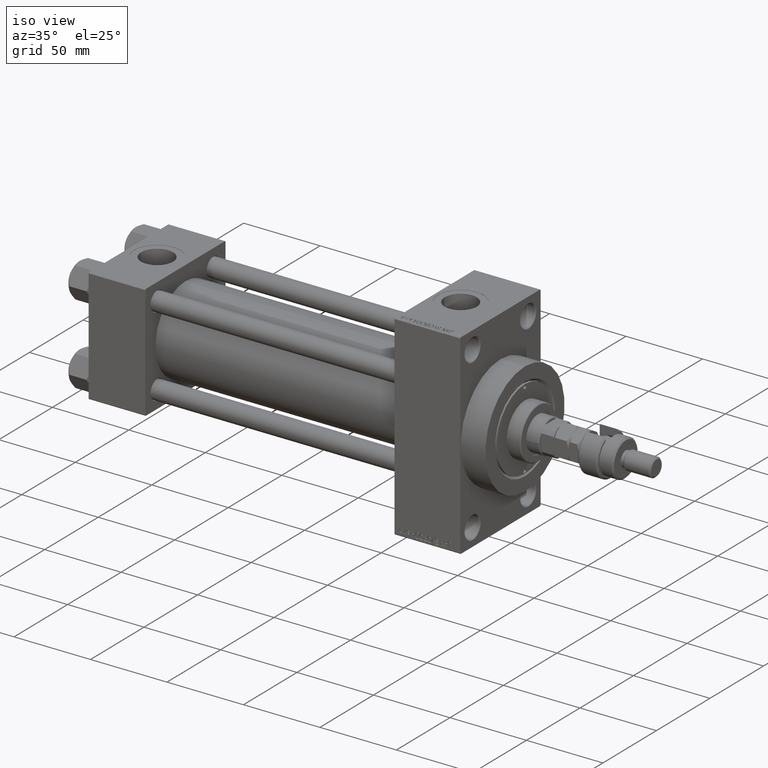
[diagram: clean part render]
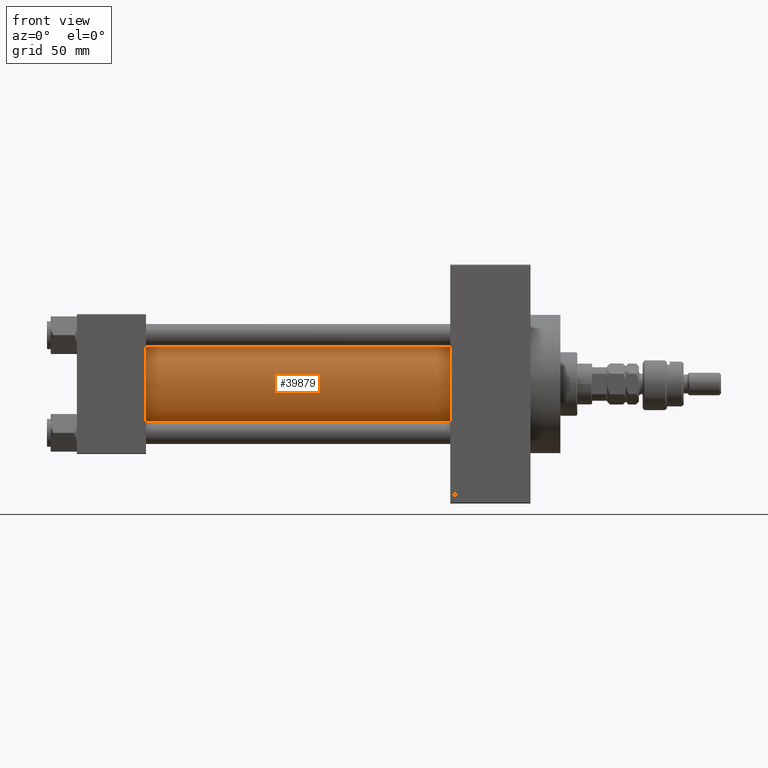
[diagram: tour spotlight — one face highlighted and labeled with its STEP entity id]
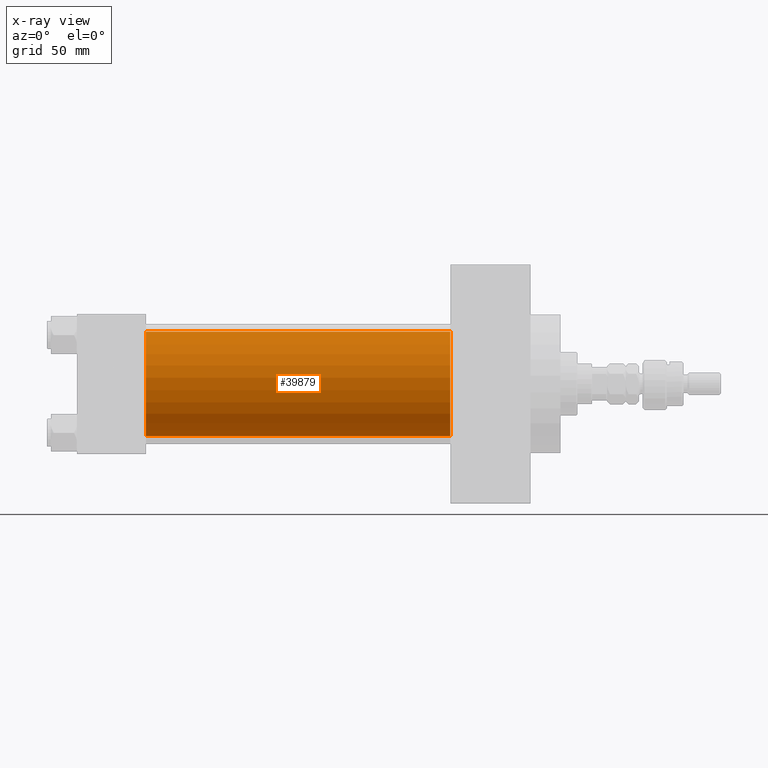
[diagram: x-ray of the same camera — body ghosted, this tour face saturated]
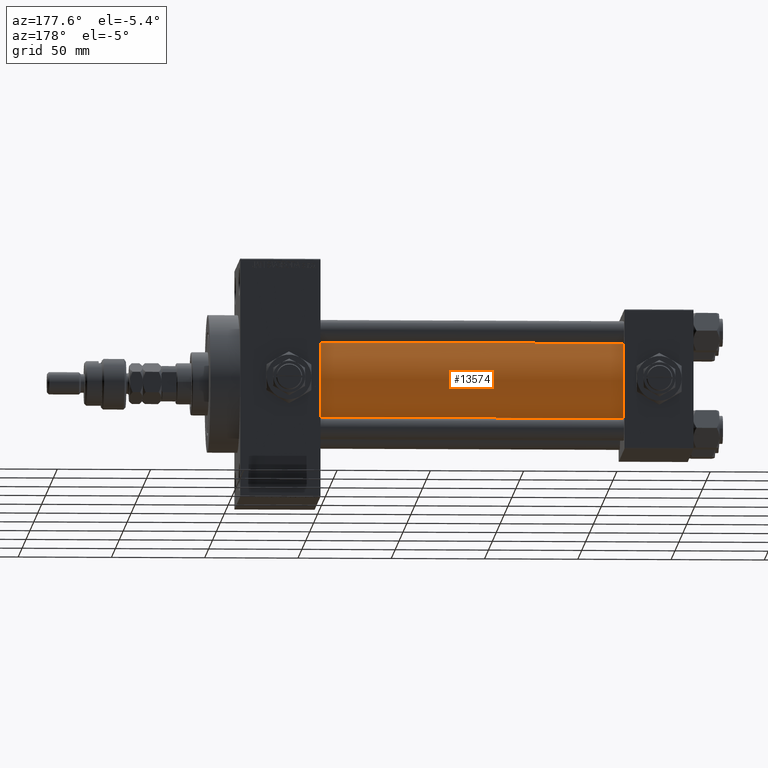
[diagram: tour spotlight — one face highlighted and labeled with its STEP entity id]
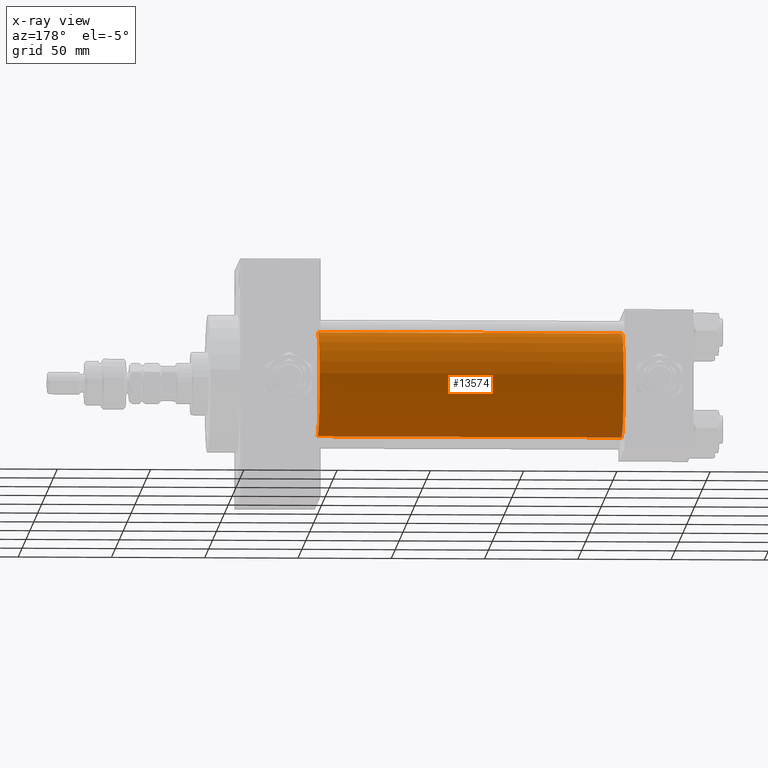
[diagram: x-ray of the same camera — body ghosted, this tour face saturated]
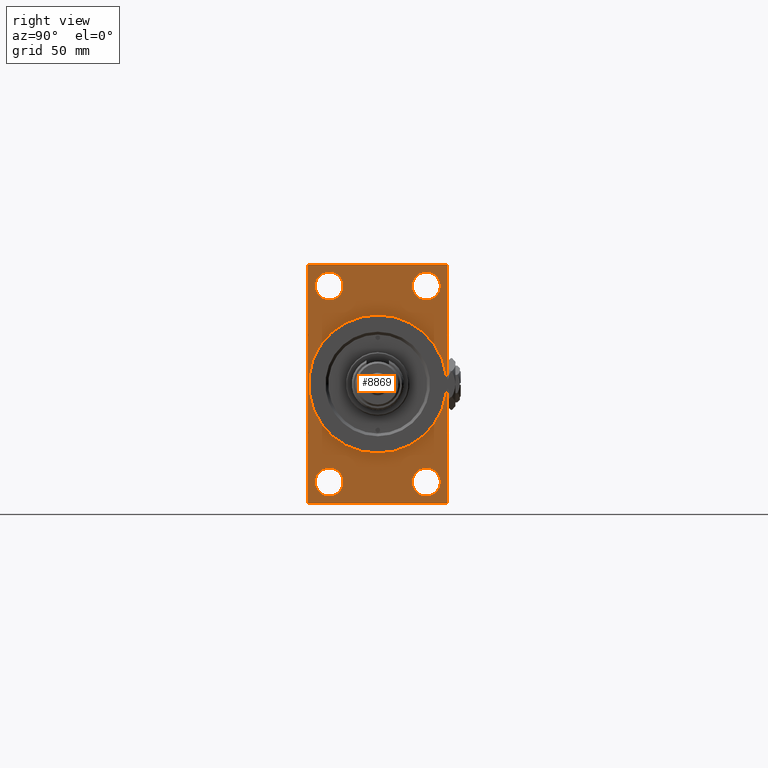
[diagram: tour spotlight — one face highlighted and labeled with its STEP entity id]
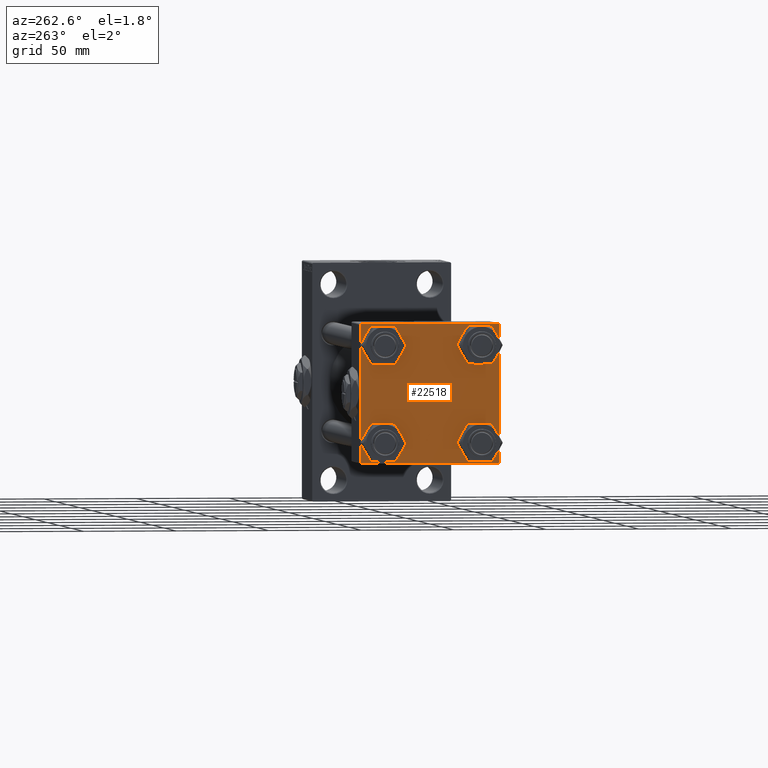
[diagram: tour spotlight — one face highlighted and labeled with its STEP entity id]
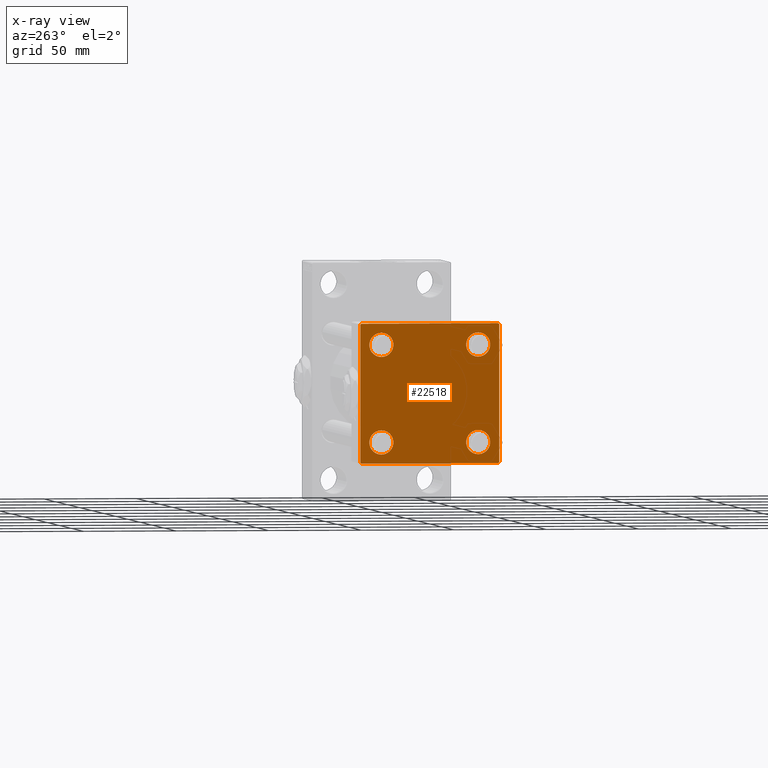
[diagram: x-ray of the same camera — body ghosted, this tour face saturated]
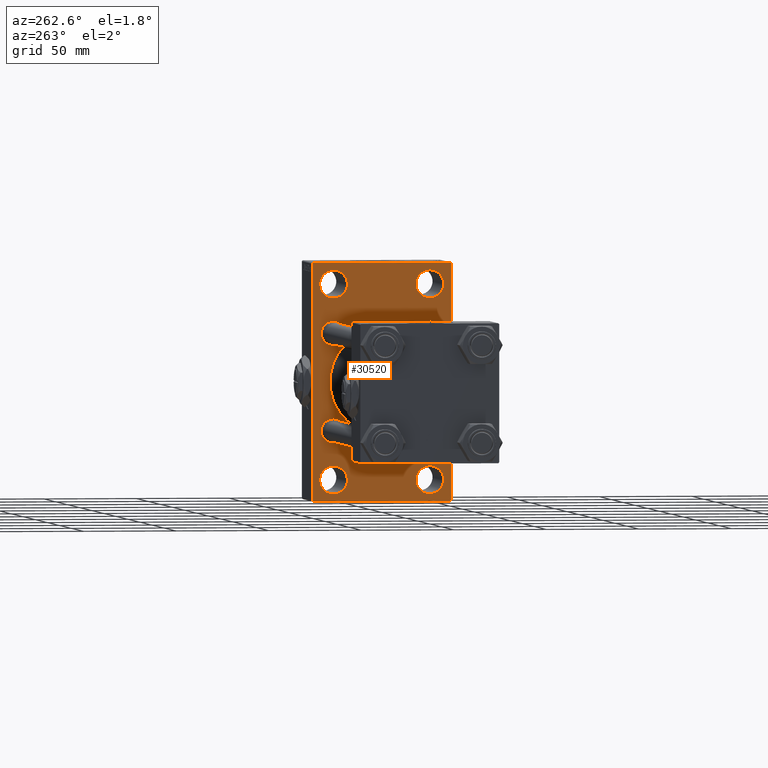
[diagram: tour spotlight — one face highlighted and labeled with its STEP entity id]
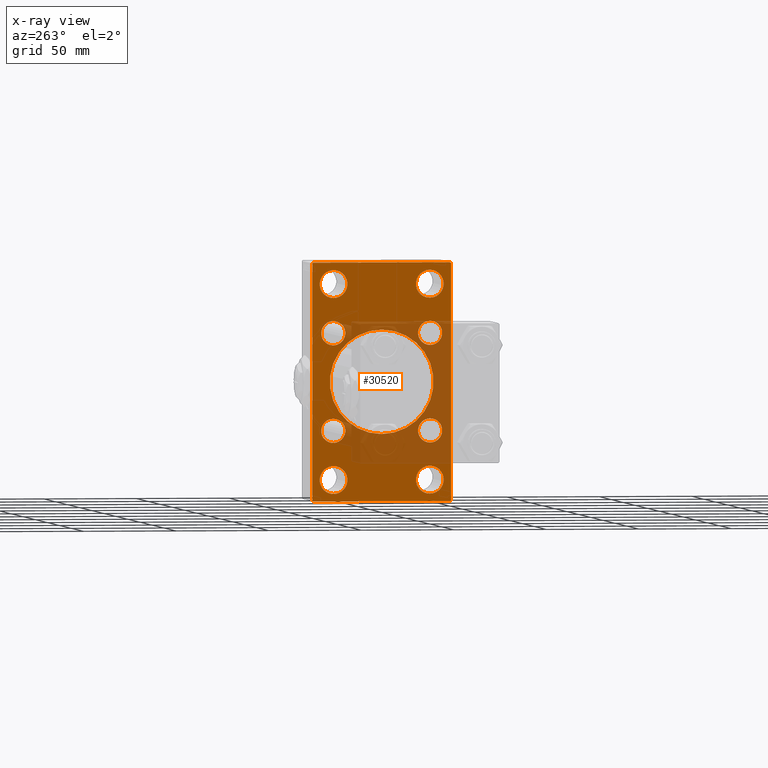
[diagram: x-ray of the same camera — body ghosted, this tour face saturated]
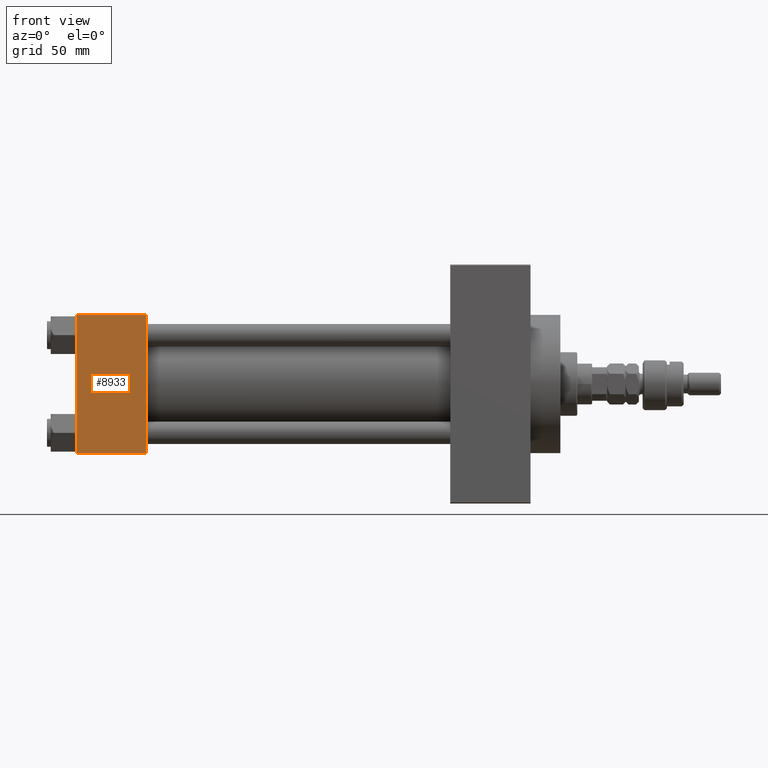
[diagram: tour spotlight — one face highlighted and labeled with its STEP entity id]
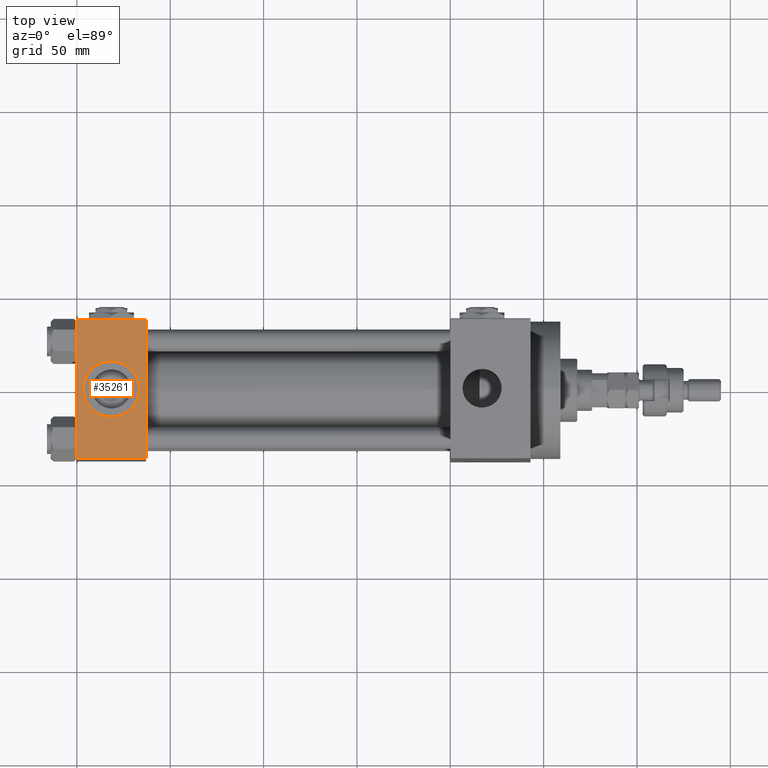
[diagram: tour spotlight — one face highlighted and labeled with its STEP entity id]
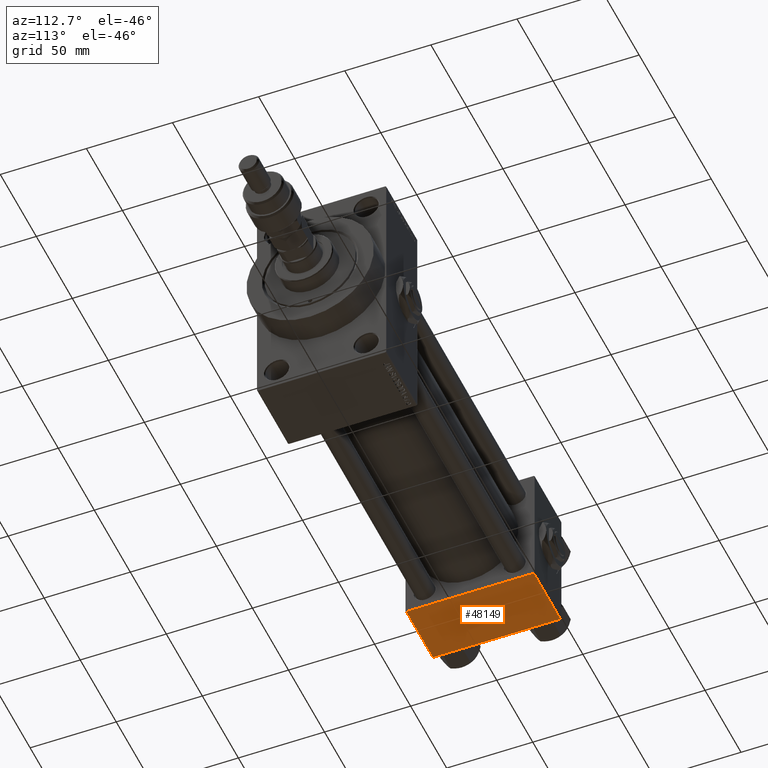
[diagram: tour spotlight — one face highlighted and labeled with its STEP entity id]
A machine part: a face-by-face anatomy tour. The part has 1297 B-rep faces; the first image is the clean iso view, then the 8 largest visible faces are spotlighted one at a time (largest first), each with its STEP entity span.

Face 1 — front view, entity #39879. An x-ray twin of the same camera follows (body ghosted, this face saturated) — the face is partly hidden behind the body. In plain terms, the highlighted cylindrical surface (partial cylindrical patch) has radius 28 mm, axis along (-1, -0, -0).
Definition (entity closure, byte-faithful):
#2116 = CARTESIAN_POINT ( 'NONE',  ( 200.0000000000000000, -2.602085213965210642E-15, 28.00000000000000000 ) ) ;
#2608 = CYLINDRICAL_SURFACE ( 'NONE', #25551, 28.00000000000000000 ) ;
#3634 = CIRCLE ( 'NONE', #44191, 28.00000000000000000 ) ;
#4067 = EDGE_LOOP ( 'NONE', ( #49019, #43283, #26954, #33730 ) ) ;
#4805 = VECTOR ( 'NONE', #11280, 1000.000000000000000 ) ;
#6915 = CARTESIAN_POINT ( 'NONE',  ( 37.00000000000000711, -2.602085213965210642E-15, 0.000000000000000000 ) ) ;
#8539 = EDGE_CURVE ( 'NONE', #33530, #34819, #14195, .T. ) ;
#9459 = DIRECTION ( 'NONE',  ( 0.000000000000000000, 0.000000000000000000, -1.000000000000000000 ) ) ;
#10891 = DIRECTION ( 'NONE',  ( 0.000000000000000000, 0.000000000000000000, 1.000000000000000000 ) ) ;
#11280 = DIRECTION ( 'NONE',  ( -1.000000000000000000, -0.000000000000000000, -0.000000000000000000 ) ) ;
#14195 = LINE ( 'NONE', #18934, #4805 ) ;
#17204 = DIRECTION ( 'NONE',  ( -1.000000000000000000, -0.000000000000000000, -0.000000000000000000 ) ) ;
#18934 = CARTESIAN_POINT ( 'NONE',  ( 200.0000000000000000, 8.269258236473784371E-16, -28.00000000000000000 ) ) ;
#20593 = VERTEX_POINT ( 'NONE', #40118 ) ;
#22193 = FACE_OUTER_BOUND ( 'NONE', #4067, .T. ) ;
#22257 = VERTEX_POINT ( 'NONE', #39976 ) ;
#25551 = AXIS2_PLACEMENT_3D ( 'NONE', #34890, #51026, #50507 ) ;
#26722 = AXIS2_PLACEMENT_3D ( 'NONE', #6915, #42896, #10891 ) ;
#26751 = CIRCLE ( 'NONE', #26722, 28.00000000000000000 ) ;
#26954 = ORIENTED_EDGE ( 'NONE', *, *, #46756, .T. ) ;
#28258 = CARTESIAN_POINT ( 'NONE',  ( 37.00000000000000711, 8.269258236473784371E-16, -28.00000000000000000 ) ) ;
#30566 = EDGE_CURVE ( 'NONE', #22257, #34819, #26751, .T. ) ;
#33530 = VERTEX_POINT ( 'NONE', #41588 ) ;
#33730 = ORIENTED_EDGE ( 'NONE', *, *, #30566, .T. ) ;
#34819 = VERTEX_POINT ( 'NONE', #28258 ) ;
#34890 = CARTESIAN_POINT ( 'NONE',  ( 200.0000000000000000, -2.602085213965210642E-15, 0.000000000000000000 ) ) ;
#37571 = LINE ( 'NONE', #2116, #40902 ) ;
#39879 = ADVANCED_FACE ( 'NONE', ( #22193 ), #2608, .T. ) ;
#39976 = CARTESIAN_POINT ( 'NONE',  ( 37.00000000000000711, -2.602085213965210642E-15, 28.00000000000000000 ) ) ;
#40118 = CARTESIAN_POINT ( 'NONE',  ( 200.0000000000000000, -2.602085213965210642E-15, 28.00000000000000000 ) ) ;
#40902 = VECTOR ( 'NONE', #17204, 1000.000000000000000 ) ;
#40935 = EDGE_CURVE ( 'NONE', #20593, #33530, #3634, .T. ) ;
#41588 = CARTESIAN_POINT ( 'NONE',  ( 200.0000000000000000, 8.269258236473784371E-16, -28.00000000000000000 ) ) ;
#41725 = DIRECTION ( 'NONE',  ( 1.000000000000000000, 0.000000000000000000, 0.000000000000000000 ) ) ;
#42896 = DIRECTION ( 'NONE',  ( 1.000000000000000000, -0.000000000000000000, 0.000000000000000000 ) ) ;
#43283 = ORIENTED_EDGE ( 'NONE', *, *, #40935, .F. ) ;
#44191 = AXIS2_PLACEMENT_3D ( 'NONE', #45181, #41725, #9459 ) ;
#45181 = CARTESIAN_POINT ( 'NONE',  ( 200.0000000000000000, -2.602085213965210642E-15, 0.000000000000000000 ) ) ;
#46756 = EDGE_CURVE ( 'NONE', #20593, #22257, #37571, .T. ) ;
#49019 = ORIENTED_EDGE ( 'NONE', *, *, #8539, .F. ) ;
#50507 = DIRECTION ( 'NONE',  ( 0.000000000000000000, 0.000000000000000000, 1.000000000000000000 ) ) ;
#51026 = DIRECTION ( 'NONE',  ( -1.000000000000000000, -0.000000000000000000, -0.000000000000000000 ) ) ;

Face 2 — auxiliary view, entity #13574. An x-ray twin of the same camera follows (body ghosted, this face saturated) — the face is partly hidden behind the body. In plain terms, the highlighted cylindrical surface (partial cylindrical patch) has radius 28 mm, axis along (-1, -0, -0).
Definition (entity closure, byte-faithful):
#2116 = CARTESIAN_POINT ( 'NONE',  ( 200.0000000000000000, -2.602085213965210642E-15, 28.00000000000000000 ) ) ;
#2118 = AXIS2_PLACEMENT_3D ( 'NONE', #2938, #6642, #11153 ) ;
#2765 = DIRECTION ( 'NONE',  ( 1.000000000000000000, 0.000000000000000000, 0.000000000000000000 ) ) ;
#2938 = CARTESIAN_POINT ( 'NONE',  ( 37.00000000000000711, -2.602085213965210642E-15, 0.000000000000000000 ) ) ;
#4805 = VECTOR ( 'NONE', #11280, 1000.000000000000000 ) ;
#6642 = DIRECTION ( 'NONE',  ( 1.000000000000000000, -0.000000000000000000, 0.000000000000000000 ) ) ;
#6678 = CARTESIAN_POINT ( 'NONE',  ( 200.0000000000000000, -2.602085213965210642E-15, 0.000000000000000000 ) ) ;
#8539 = EDGE_CURVE ( 'NONE', #33530, #34819, #14195, .T. ) ;
#8665 = EDGE_CURVE ( 'NONE', #34819, #22257, #20686, .T. ) ;
#10122 = CYLINDRICAL_SURFACE ( 'NONE', #24487, 28.00000000000000000 ) ;
#11153 = DIRECTION ( 'NONE',  ( 0.000000000000000000, 0.000000000000000000, 1.000000000000000000 ) ) ;
#11280 = DIRECTION ( 'NONE',  ( -1.000000000000000000, -0.000000000000000000, -0.000000000000000000 ) ) ;
#13574 = ADVANCED_FACE ( 'NONE', ( #14625 ), #10122, .T. ) ;
#14195 = LINE ( 'NONE', #18934, #4805 ) ;
#14357 = DIRECTION ( 'NONE',  ( 0.000000000000000000, 0.000000000000000000, 1.000000000000000000 ) ) ;
#14625 = FACE_OUTER_BOUND ( 'NONE', #40962, .T. ) ;
#15855 = AXIS2_PLACEMENT_3D ( 'NONE', #22614, #2765, #26307 ) ;
#17204 = DIRECTION ( 'NONE',  ( -1.000000000000000000, -0.000000000000000000, -0.000000000000000000 ) ) ;
#18934 = CARTESIAN_POINT ( 'NONE',  ( 200.0000000000000000, 8.269258236473784371E-16, -28.00000000000000000 ) ) ;
#20593 = VERTEX_POINT ( 'NONE', #40118 ) ;
#20686 = CIRCLE ( 'NONE', #2118, 28.00000000000000000 ) ;
#22257 = VERTEX_POINT ( 'NONE', #39976 ) ;
#22614 = CARTESIAN_POINT ( 'NONE',  ( 200.0000000000000000, -2.602085213965210642E-15, 0.000000000000000000 ) ) ;
#23434 = CIRCLE ( 'NONE', #15855, 28.00000000000000000 ) ;
#24290 = ORIENTED_EDGE ( 'NONE', *, *, #8539, .T. ) ;
#24487 = AXIS2_PLACEMENT_3D ( 'NONE', #6678, #34987, #14357 ) ;
#26307 = DIRECTION ( 'NONE',  ( 0.000000000000000000, 0.000000000000000000, -1.000000000000000000 ) ) ;
#28258 = CARTESIAN_POINT ( 'NONE',  ( 37.00000000000000711, 8.269258236473784371E-16, -28.00000000000000000 ) ) ;
#32509 = EDGE_CURVE ( 'NONE', #33530, #20593, #23434, .T. ) ;
#33530 = VERTEX_POINT ( 'NONE', #41588 ) ;
#34819 = VERTEX_POINT ( 'NONE', #28258 ) ;
#34987 = DIRECTION ( 'NONE',  ( -1.000000000000000000, -0.000000000000000000, -0.000000000000000000 ) ) ;
#37571 = LINE ( 'NONE', #2116, #40902 ) ;
#39976 = CARTESIAN_POINT ( 'NONE',  ( 37.00000000000000711, -2.602085213965210642E-15, 28.00000000000000000 ) ) ;
#40118 = CARTESIAN_POINT ( 'NONE',  ( 200.0000000000000000, -2.602085213965210642E-15, 28.00000000000000000 ) ) ;
#40347 = ORIENTED_EDGE ( 'NONE', *, *, #8665, .T. ) ;
#40902 = VECTOR ( 'NONE', #17204, 1000.000000000000000 ) ;
#40962 = EDGE_LOOP ( 'NONE', ( #46108, #24290, #40347, #51540 ) ) ;
#41588 = CARTESIAN_POINT ( 'NONE',  ( 200.0000000000000000, 8.269258236473784371E-16, -28.00000000000000000 ) ) ;
#46108 = ORIENTED_EDGE ( 'NONE', *, *, #32509, .F. ) ;
#46756 = EDGE_CURVE ( 'NONE', #20593, #22257, #37571, .T. ) ;
#51540 = ORIENTED_EDGE ( 'NONE', *, *, #46756, .F. ) ;

Face 3 — right view, entity #8869. In plain terms, the highlighted planar face has unit normal (-1, 0, 0).
Definition (entity closure, byte-faithful):
#168 = VERTEX_POINT ( 'NONE', #41139 ) ;
#400 = LINE ( 'NONE', #36387, #34209 ) ;
#481 = ORIENTED_EDGE ( 'NONE', *, *, #42717, .T. ) ;
#877 = DIRECTION ( 'NONE',  ( -1.000000000000000000, 0.000000000000000000, -0.000000000000000000 ) ) ;
#1132 = CARTESIAN_POINT ( 'NONE',  ( 243.0000000000000000, -25.99999999999999645, 52.50000000000000000 ) ) ;
#1200 = DIRECTION ( 'NONE',  ( 1.000000000000000000, 0.000000000000000000, 0.000000000000000000 ) ) ;
#1345 = AXIS2_PLACEMENT_3D ( 'NONE', #5713, #17093, #25542 ) ;
#2596 = DIRECTION ( 'NONE',  ( 0.000000000000000000, -1.000000000000000000, -1.850371707708594563E-16 ) ) ;
#2873 = ORIENTED_EDGE ( 'NONE', *, *, #50897, .T. ) ;
#3317 = VERTEX_POINT ( 'NONE', #18515 ) ;
#3324 = VECTOR ( 'NONE', #2596, 1000.000000000000000 ) ;
#3888 = AXIS2_PLACEMENT_3D ( 'NONE', #38245, #13401, #33500 ) ;
#4025 = DIRECTION ( 'NONE',  ( 0.000000000000000000, 0.000000000000000000, 1.000000000000000000 ) ) ;
#4360 = EDGE_CURVE ( 'NONE', #168, #24734, #34616, .T. ) ;
#4366 = EDGE_CURVE ( 'NONE', #13607, #5421, #10545, .T. ) ;
#4827 = AXIS2_PLACEMENT_3D ( 'NONE', #6321, #17955, #14004 ) ;
#5122 = CIRCLE ( 'NONE', #40601, 37.00000000000000000 ) ;
#5421 = VERTEX_POINT ( 'NONE', #50040 ) ;
#5428 = AXIS2_PLACEMENT_3D ( 'NONE', #32621, #37103, #32877 ) ;
#5713 = CARTESIAN_POINT ( 'NONE',  ( 243.0000000000000000, 26.00000000000000000, 52.49999999999999289 ) ) ;
#5750 = VERTEX_POINT ( 'NONE', #10320 ) ;
#6048 = AXIS2_PLACEMENT_3D ( 'NONE', #9771, #38838, #42034 ) ;
#6161 = EDGE_CURVE ( 'NONE', #17985, #46832, #36412, .T. ) ;
#6212 = DIRECTION ( 'NONE',  ( -1.000000000000000000, 0.000000000000000000, -0.000000000000000000 ) ) ;
#6259 = CARTESIAN_POINT ( 'NONE',  ( 243.0000000000000000, 0.000000000000000000, 37.00000000000000000 ) ) ;
#6312 = DIRECTION ( 'NONE',  ( 0.000000000000000000, -0.7071067811865474617, 0.7071067811865474617 ) ) ;
#6321 = CARTESIAN_POINT ( 'NONE',  ( 243.0000000000000000, 0.000000000000000000, 0.000000000000000000 ) ) ;
#6354 = EDGE_LOOP ( 'NONE', ( #30894, #481 ) ) ;
#6589 = EDGE_CURVE ( 'NONE', #12733, #20449, #42300, .T. ) ;
#6835 = LINE ( 'NONE', #26673, #38554 ) ;
#7552 = VERTEX_POINT ( 'NONE', #33428 ) ;
#8688 = CARTESIAN_POINT ( 'NONE',  ( 243.0000000000000000, -25.99999999999999645, 44.99999999999996447 ) ) ;
#8757 = CARTESIAN_POINT ( 'NONE',  ( 243.0000000000000000, -37.00000000000002132, -64.00000000000001421 ) ) ;
#8869 = ADVANCED_FACE ( 'NONE', ( #34374, #22194, #49465, #33318, #29341, #13484 ), #21923, .F. ) ;
#9771 = CARTESIAN_POINT ( 'NONE',  ( 243.0000000000000000, -25.99999999999999645, 52.50000000000000000 ) ) ;
#9810 = EDGE_LOOP ( 'NONE', ( #45683, #24411 ) ) ;
#9854 = LINE ( 'NONE', #18034, #52129 ) ;
#9963 = DIRECTION ( 'NONE',  ( -1.000000000000000000, 0.000000000000000000, -0.000000000000000000 ) ) ;
#9972 = CARTESIAN_POINT ( 'NONE',  ( 243.0000000000000000, -25.99999999999999645, -60.00000000000002842 ) ) ;
#10320 = CARTESIAN_POINT ( 'NONE',  ( 243.0000000000000000, -37.49999999999999289, 63.50000000000000000 ) ) ;
#10545 = LINE ( 'NONE', #26671, #3324 ) ;
#12419 = VERTEX_POINT ( 'NONE', #9972 ) ;
#12728 = CARTESIAN_POINT ( 'NONE',  ( 243.0000000000000000, 26.00000000000000000, 60.00000000000002842 ) ) ;
#12733 = VERTEX_POINT ( 'NONE', #16794 ) ;
#12990 = LINE ( 'NONE', #8757, #19814 ) ;
#13401 = DIRECTION ( 'NONE',  ( 1.000000000000000000, 0.000000000000000000, 0.000000000000000000 ) ) ;
#13484 = FACE_OUTER_BOUND ( 'NONE', #22070, .T. ) ;
#13500 = DIRECTION ( 'NONE',  ( 0.000000000000000000, 0.000000000000000000, 1.000000000000000000 ) ) ;
#13607 = VERTEX_POINT ( 'NONE', #50859 ) ;
#13760 = DIRECTION ( 'NONE',  ( -1.000000000000000000, 0.000000000000000000, -0.000000000000000000 ) ) ;
#14004 = DIRECTION ( 'NONE',  ( -0.000000000000000000, 0.000000000000000000, 1.000000000000000000 ) ) ;
#15158 = DIRECTION ( 'NONE',  ( -1.000000000000000000, 0.000000000000000000, -0.000000000000000000 ) ) ;
#15234 = ORIENTED_EDGE ( 'NONE', *, *, #49758, .T. ) ;
#15795 = CARTESIAN_POINT ( 'NONE',  ( 243.0000000000000000, 37.50000000000000000, 63.99999999999998579 ) ) ;
#16541 = DIRECTION ( 'NONE',  ( -0.000000000000000000, -0.7071067811865524577, -0.7071067811865426878 ) ) ;
#16794 = CARTESIAN_POINT ( 'NONE',  ( 243.0000000000000000, -25.99999999999999645, 60.00000000000003553 ) ) ;
#16971 = EDGE_CURVE ( 'NONE', #7552, #51390, #22963, .T. ) ;
#17093 = DIRECTION ( 'NONE',  ( -1.000000000000000000, 0.000000000000000000, -0.000000000000000000 ) ) ;
#17849 = DIRECTION ( 'NONE',  ( 0.000000000000000000, 0.000000000000000000, 1.000000000000000000 ) ) ;
#17955 = DIRECTION ( 'NONE',  ( -1.000000000000000000, 0.000000000000000000, -0.000000000000000000 ) ) ;
#17985 = VERTEX_POINT ( 'NONE', #26590 ) ;
#18034 = CARTESIAN_POINT ( 'NONE',  ( 243.0000000000000000, -37.49999999999999289, 63.99999999999997158 ) ) ;
#18515 = CARTESIAN_POINT ( 'NONE',  ( 243.0000000000000000, -37.49999999999999289, -63.50000000000002842 ) ) ;
#19814 = VECTOR ( 'NONE', #24873, 1000.000000000000114 ) ;
#20449 = VERTEX_POINT ( 'NONE', #8688 ) ;
#21140 = VECTOR ( 'NONE', #31909, 1000.000000000000000 ) ;
#21286 = AXIS2_PLACEMENT_3D ( 'NONE', #41536, #13760, #13500 ) ;
#21923 = PLANE ( 'NONE',  #4827 ) ;
#22070 = EDGE_LOOP ( 'NONE', ( #48941, #40840, #48675, #33678, #49747, #2873, #24256, #49494 ) ) ;
#22170 = CIRCLE ( 'NONE', #21286, 7.500000000000034639 ) ;
#22194 = FACE_BOUND ( 'NONE', #9810, .T. ) ;
#22355 = VECTOR ( 'NONE', #29759, 999.9999999999998863 ) ;
#22963 = CIRCLE ( 'NONE', #34775, 7.500000000000034639 ) ;
#23167 = CARTESIAN_POINT ( 'NONE',  ( 243.0000000000000000, 26.00000000000000000, 52.49999999999999289 ) ) ;
#23178 = EDGE_CURVE ( 'NONE', #3317, #5421, #12990, .T. ) ;
#23293 = VERTEX_POINT ( 'NONE', #12728 ) ;
#23866 = CARTESIAN_POINT ( 'NONE',  ( 243.0000000000000000, -25.99999999999999645, -52.49999999999999289 ) ) ;
#24110 = AXIS2_PLACEMENT_3D ( 'NONE', #23167, #9963, #26074 ) ;
#24256 = ORIENTED_EDGE ( 'NONE', *, *, #6161, .T. ) ;
#24411 = ORIENTED_EDGE ( 'NONE', *, *, #36923, .T. ) ;
#24734 = VERTEX_POINT ( 'NONE', #41753 ) ;
#24770 = VERTEX_POINT ( 'NONE', #42803 ) ;
#24873 = DIRECTION ( 'NONE',  ( 0.000000000000000000, 0.7071067811865376918, -0.7071067811865573427 ) ) ;
#25542 = DIRECTION ( 'NONE',  ( 0.000000000000000000, 0.000000000000000000, 1.000000000000000000 ) ) ;
#26074 = DIRECTION ( 'NONE',  ( 0.000000000000000000, 0.000000000000000000, 1.000000000000000000 ) ) ;
#26590 = CARTESIAN_POINT ( 'NONE',  ( 243.0000000000000000, 37.00000000000000000, 63.99999999999998579 ) ) ;
#26671 = CARTESIAN_POINT ( 'NONE',  ( 243.0000000000000000, 37.49999999999999289, -64.00000000000000000 ) ) ;
#26673 = CARTESIAN_POINT ( 'NONE',  ( 243.0000000000000000, 37.00000000000000000, 63.99999999999998579 ) ) ;
#26694 = CIRCLE ( 'NONE', #3888, 37.00000000000000000 ) ;
#26952 = EDGE_LOOP ( 'NONE', ( #38269, #15234 ) ) ;
#27199 = EDGE_CURVE ( 'NONE', #46832, #5750, #400, .T. ) ;
#28259 = EDGE_CURVE ( 'NONE', #32366, #23293, #35115, .T. ) ;
#28333 = ORIENTED_EDGE ( 'NONE', *, *, #36120, .F. ) ;
#28781 = CARTESIAN_POINT ( 'NONE',  ( 243.0000000000000000, 26.00000000000000000, -44.99999999999995737 ) ) ;
#28815 = CIRCLE ( 'NONE', #44047, 7.500000000000034639 ) ;
#29341 = FACE_BOUND ( 'NONE', #43931, .T. ) ;
#29492 = CARTESIAN_POINT ( 'NONE',  ( 243.0000000000000000, 37.49999999999999289, -63.50000000000007105 ) ) ;
#29759 = DIRECTION ( 'NONE',  ( -0.000000000000000000, 0.7071067811865574537, 0.7071067811865376918 ) ) ;
#30018 = LINE ( 'NONE', #29492, #22355 ) ;
#30632 = CARTESIAN_POINT ( 'NONE',  ( 243.0000000000000000, 37.50000000000000000, 63.99999999999998579 ) ) ;
#30894 = ORIENTED_EDGE ( 'NONE', *, *, #16971, .T. ) ;
#31569 = EDGE_CURVE ( 'NONE', #5750, #3317, #9854, .T. ) ;
#31718 = CARTESIAN_POINT ( 'NONE',  ( 243.0000000000000000, -37.00000000000001421, 63.99999999999997158 ) ) ;
#31909 = DIRECTION ( 'NONE',  ( 0.000000000000000000, -1.000000000000000000, -1.850371707708594563E-16 ) ) ;
#32366 = VERTEX_POINT ( 'NONE', #36919 ) ;
#32621 = CARTESIAN_POINT ( 'NONE',  ( 243.0000000000000000, -25.99999999999999645, -52.49999999999999289 ) ) ;
#32877 = DIRECTION ( 'NONE',  ( 0.000000000000000000, 0.000000000000000000, 1.000000000000000000 ) ) ;
#33318 = FACE_BOUND ( 'NONE', #26952, .T. ) ;
#33418 = DIRECTION ( 'NONE',  ( 0.000000000000000000, 0.000000000000000000, 1.000000000000000000 ) ) ;
#33428 = CARTESIAN_POINT ( 'NONE',  ( 243.0000000000000000, 26.00000000000000000, -60.00000000000002842 ) ) ;
#33500 = DIRECTION ( 'NONE',  ( 0.000000000000000000, 0.000000000000000000, -1.000000000000000000 ) ) ;
#33678 = ORIENTED_EDGE ( 'NONE', *, *, #47643, .T. ) ;
#33728 = VERTEX_POINT ( 'NONE', #6259 ) ;
#34188 = DIRECTION ( 'NONE',  ( 0.000000000000000000, 0.000000000000000000, -1.000000000000000000 ) ) ;
#34209 = VECTOR ( 'NONE', #16541, 1000.000000000000000 ) ;
#34374 = FACE_BOUND ( 'NONE', #35740, .T. ) ;
#34616 = LINE ( 'NONE', #30632, #44834 ) ;
#34775 = AXIS2_PLACEMENT_3D ( 'NONE', #41937, #6212, #17849 ) ;
#35115 = CIRCLE ( 'NONE', #24110, 7.500000000000034639 ) ;
#35740 = EDGE_LOOP ( 'NONE', ( #43858, #39736 ) ) ;
#35847 = CIRCLE ( 'NONE', #5428, 7.500000000000034639 ) ;
#36120 = EDGE_CURVE ( 'NONE', #24770, #33728, #5122, .T. ) ;
#36387 = CARTESIAN_POINT ( 'NONE',  ( 243.0000000000000000, -37.49999999999999289, 63.50000000000000000 ) ) ;
#36412 = LINE ( 'NONE', #15795, #21140 ) ;
#36919 = CARTESIAN_POINT ( 'NONE',  ( 243.0000000000000000, 26.00000000000000000, 44.99999999999995737 ) ) ;
#36923 = EDGE_CURVE ( 'NONE', #40143, #12419, #28815, .T. ) ;
#37103 = DIRECTION ( 'NONE',  ( -1.000000000000000000, 0.000000000000000000, -0.000000000000000000 ) ) ;
#38245 = CARTESIAN_POINT ( 'NONE',  ( 243.0000000000000000, 0.000000000000000000, 0.000000000000000000 ) ) ;
#38247 = EDGE_CURVE ( 'NONE', #20449, #12733, #47456, .T. ) ;
#38269 = ORIENTED_EDGE ( 'NONE', *, *, #28259, .T. ) ;
#38554 = VECTOR ( 'NONE', #6312, 1000.000000000000114 ) ;
#38838 = DIRECTION ( 'NONE',  ( -1.000000000000000000, 0.000000000000000000, -0.000000000000000000 ) ) ;
#39736 = ORIENTED_EDGE ( 'NONE', *, *, #6589, .T. ) ;
#40143 = VERTEX_POINT ( 'NONE', #43744 ) ;
#40601 = AXIS2_PLACEMENT_3D ( 'NONE', #50412, #1200, #45394 ) ;
#40840 = ORIENTED_EDGE ( 'NONE', *, *, #23178, .T. ) ;
#41139 = CARTESIAN_POINT ( 'NONE',  ( 243.0000000000000000, 37.50000000000000000, 63.49999999999998579 ) ) ;
#41536 = CARTESIAN_POINT ( 'NONE',  ( 243.0000000000000000, 26.00000000000000000, -52.49999999999999289 ) ) ;
#41753 = CARTESIAN_POINT ( 'NONE',  ( 243.0000000000000000, 37.49999999999999289, -63.50000000000007105 ) ) ;
#41937 = CARTESIAN_POINT ( 'NONE',  ( 243.0000000000000000, 26.00000000000000000, -52.49999999999999289 ) ) ;
#42034 = DIRECTION ( 'NONE',  ( 0.000000000000000000, 0.000000000000000000, 1.000000000000000000 ) ) ;
#42300 = CIRCLE ( 'NONE', #45659, 7.500000000000034639 ) ;
#42717 = EDGE_CURVE ( 'NONE', #51390, #7552, #22170, .T. ) ;
#42803 = CARTESIAN_POINT ( 'NONE',  ( 243.0000000000000000, 4.531193156845206793E-15, -37.00000000000000000 ) ) ;
#43744 = CARTESIAN_POINT ( 'NONE',  ( 243.0000000000000000, -25.99999999999999645, -44.99999999999995737 ) ) ;
#43858 = ORIENTED_EDGE ( 'NONE', *, *, #38247, .T. ) ;
#43931 = EDGE_LOOP ( 'NONE', ( #46018, #28333 ) ) ;
#44047 = AXIS2_PLACEMENT_3D ( 'NONE', #23866, #15158, #4025 ) ;
#44834 = VECTOR ( 'NONE', #46787, 1000.000000000000000 ) ;
#45394 = DIRECTION ( 'NONE',  ( 0.000000000000000000, 0.000000000000000000, -1.000000000000000000 ) ) ;
#45659 = AXIS2_PLACEMENT_3D ( 'NONE', #1132, #877, #33418 ) ;
#45683 = ORIENTED_EDGE ( 'NONE', *, *, #46363, .T. ) ;
#46018 = ORIENTED_EDGE ( 'NONE', *, *, #49708, .F. ) ;
#46363 = EDGE_CURVE ( 'NONE', #12419, #40143, #35847, .T. ) ;
#46787 = DIRECTION ( 'NONE',  ( 0.000000000000000000, -5.421010862427522170E-17, -1.000000000000000000 ) ) ;
#46832 = VERTEX_POINT ( 'NONE', #31718 ) ;
#46990 = CIRCLE ( 'NONE', #1345, 7.500000000000034639 ) ;
#47456 = CIRCLE ( 'NONE', #6048, 7.500000000000034639 ) ;
#47643 = EDGE_CURVE ( 'NONE', #13607, #24734, #30018, .T. ) ;
#48675 = ORIENTED_EDGE ( 'NONE', *, *, #4366, .F. ) ;
#48941 = ORIENTED_EDGE ( 'NONE', *, *, #31569, .T. ) ;
#49465 = FACE_BOUND ( 'NONE', #6354, .T. ) ;
#49494 = ORIENTED_EDGE ( 'NONE', *, *, #27199, .T. ) ;
#49708 = EDGE_CURVE ( 'NONE', #33728, #24770, #26694, .T. ) ;
#49747 = ORIENTED_EDGE ( 'NONE', *, *, #4360, .F. ) ;
#49758 = EDGE_CURVE ( 'NONE', #23293, #32366, #46990, .T. ) ;
#50040 = CARTESIAN_POINT ( 'NONE',  ( 243.0000000000000000, -37.00000000000002132, -64.00000000000001421 ) ) ;
#50412 = CARTESIAN_POINT ( 'NONE',  ( 243.0000000000000000, 0.000000000000000000, 0.000000000000000000 ) ) ;
#50859 = CARTESIAN_POINT ( 'NONE',  ( 243.0000000000000000, 37.00000000000004974, -64.00000000000000000 ) ) ;
#50897 = EDGE_CURVE ( 'NONE', #168, #17985, #6835, .T. ) ;
#51390 = VERTEX_POINT ( 'NONE', #28781 ) ;
#52129 = VECTOR ( 'NONE', #34188, 1000.000000000000000 ) ;

Face 4 — auxiliary view, entity #22518. An x-ray twin of the same camera follows (body ghosted, this face saturated) — the face is partly hidden behind the body. In plain terms, the highlighted planar face has unit normal (-1, 0, 0).
Definition (entity closure, byte-faithful):
#44 = VECTOR ( 'NONE', #30801, 1000.000000000000000 ) ;
#413 = EDGE_LOOP ( 'NONE', ( #22431, #36069 ) ) ;
#750 = EDGE_CURVE ( 'NONE', #38433, #16289, #44721, .T. ) ;
#797 = VECTOR ( 'NONE', #35046, 1000.000000000000000 ) ;
#1015 = DIRECTION ( 'NONE',  ( 0.000000000000000000, 0.000000000000000000, 1.000000000000000000 ) ) ;
#1357 = EDGE_CURVE ( 'NONE', #48033, #45865, #25785, .T. ) ;
#1469 = DIRECTION ( 'NONE',  ( 1.000000000000000000, -0.000000000000000000, 0.000000000000000000 ) ) ;
#2373 = CARTESIAN_POINT ( 'NONE',  ( 0.000000000000000000, 37.49999999999999289, -36.99999999999998579 ) ) ;
#2798 = AXIS2_PLACEMENT_3D ( 'NONE', #33482, #49619, #13384 ) ;
#2814 = CARTESIAN_POINT ( 'NONE',  ( 0.000000000000000000, 37.49999999999999289, 37.00000000000000000 ) ) ;
#3447 = AXIS2_PLACEMENT_3D ( 'NONE', #44878, #1469, #17604 ) ;
#3530 = DIRECTION ( 'NONE',  ( 0.000000000000000000, 0.000000000000000000, 1.000000000000000000 ) ) ;
#4135 = CARTESIAN_POINT ( 'NONE',  ( 0.000000000000000000, -37.24999999999975842, -37.25000000000027001 ) ) ;
#4832 = EDGE_CURVE ( 'NONE', #16289, #38433, #22774, .T. ) ;
#5014 = DIRECTION ( 'NONE',  ( 1.000000000000000000, -0.000000000000000000, 0.000000000000000000 ) ) ;
#5386 = EDGE_CURVE ( 'NONE', #23410, #35154, #44758, .T. ) ;
#5397 = ORIENTED_EDGE ( 'NONE', *, *, #6355, .T. ) ;
#5409 = VECTOR ( 'NONE', #36272, 1000.000000000000000 ) ;
#5506 = CARTESIAN_POINT ( 'NONE',  ( 0.000000000000000000, 26.14999999999999858, -26.15000000000000213 ) ) ;
#6197 = CARTESIAN_POINT ( 'NONE',  ( 0.000000000000000000, 26.14999999999999858, 32.65000000000002700 ) ) ;
#6355 = EDGE_CURVE ( 'NONE', #12542, #23410, #10724, .T. ) ;
#7251 = EDGE_CURVE ( 'NONE', #17429, #16802, #22857, .T. ) ;
#7814 = DIRECTION ( 'NONE',  ( 1.000000000000000000, -0.000000000000000000, 0.000000000000000000 ) ) ;
#7907 = FACE_BOUND ( 'NONE', #413, .T. ) ;
#8140 = ORIENTED_EDGE ( 'NONE', *, *, #13221, .T. ) ;
#8234 = CARTESIAN_POINT ( 'NONE',  ( 0.000000000000000000, -37.50000000000000000, -37.00000000000003553 ) ) ;
#8469 = VECTOR ( 'NONE', #40799, 1000.000000000000114 ) ;
#8527 = CARTESIAN_POINT ( 'NONE',  ( 0.000000000000000000, 37.24999999999998579, -37.24999999999998579 ) ) ;
#9117 = AXIS2_PLACEMENT_3D ( 'NONE', #45508, #5014, #16167 ) ;
#9630 = AXIS2_PLACEMENT_3D ( 'NONE', #31957, #12398, #24023 ) ;
#9787 = ORIENTED_EDGE ( 'NONE', *, *, #16200, .T. ) ;
#10652 = CARTESIAN_POINT ( 'NONE',  ( 0.000000000000000000, 36.99999999999997868, -37.50000000000000000 ) ) ;
#10724 = LINE ( 'NONE', #22351, #44 ) ;
#10814 = EDGE_LOOP ( 'NONE', ( #23742, #37747 ) ) ;
#10904 = LINE ( 'NONE', #47411, #36441 ) ;
#11980 = DIRECTION ( 'NONE',  ( 1.000000000000000000, -0.000000000000000000, 0.000000000000000000 ) ) ;
#12063 = CARTESIAN_POINT ( 'NONE',  ( 0.000000000000000000, 26.14999999999999858, 19.64999999999998437 ) ) ;
#12398 = DIRECTION ( 'NONE',  ( -1.000000000000000000, 0.000000000000000000, -0.000000000000000000 ) ) ;
#12542 = VERTEX_POINT ( 'NONE', #2814 ) ;
#12580 = VERTEX_POINT ( 'NONE', #12063 ) ;
#13132 = LINE ( 'NONE', #4135, #38903 ) ;
#13201 = ORIENTED_EDGE ( 'NONE', *, *, #1357, .F. ) ;
#13221 = EDGE_CURVE ( 'NONE', #48033, #47864, #10904, .T. ) ;
#13384 = DIRECTION ( 'NONE',  ( 0.000000000000000000, 0.000000000000000000, 1.000000000000000000 ) ) ;
#14793 = VERTEX_POINT ( 'NONE', #19700 ) ;
#15105 = CARTESIAN_POINT ( 'NONE',  ( 0.000000000000000000, 37.24999999999999289, 37.24999999999999289 ) ) ;
#15871 = EDGE_CURVE ( 'NONE', #33999, #12580, #42328, .T. ) ;
#16167 = DIRECTION ( 'NONE',  ( 0.000000000000000000, 0.000000000000000000, 1.000000000000000000 ) ) ;
#16200 = EDGE_CURVE ( 'NONE', #47619, #12542, #39694, .T. ) ;
#16289 = VERTEX_POINT ( 'NONE', #16402 ) ;
#16402 = CARTESIAN_POINT ( 'NONE',  ( 0.000000000000000000, -26.14999999999999147, 32.65000000000003411 ) ) ;
#16802 = VERTEX_POINT ( 'NONE', #39597 ) ;
#17011 = ORIENTED_EDGE ( 'NONE', *, *, #36077, .T. ) ;
#17429 = VERTEX_POINT ( 'NONE', #20922 ) ;
#17604 = DIRECTION ( 'NONE',  ( 0.000000000000000000, 0.000000000000000000, 1.000000000000000000 ) ) ;
#17856 = CARTESIAN_POINT ( 'NONE',  ( 0.000000000000000000, 36.99999999999999289, 37.50000000000000000 ) ) ;
#18644 = VERTEX_POINT ( 'NONE', #31986 ) ;
#19700 = CARTESIAN_POINT ( 'NONE',  ( 0.000000000000000000, 26.14999999999999858, -19.64999999999998792 ) ) ;
#20134 = EDGE_LOOP ( 'NONE', ( #47853, #24031 ) ) ;
#20237 = AXIS2_PLACEMENT_3D ( 'NONE', #50948, #7814, #23933 ) ;
#20711 = CIRCLE ( 'NONE', #32537, 6.500000000000015987 ) ;
#20922 = CARTESIAN_POINT ( 'NONE',  ( 0.000000000000000000, -26.14999999999999147, -19.64999999999999503 ) ) ;
#21076 = ORIENTED_EDGE ( 'NONE', *, *, #5386, .T. ) ;
#21639 = DIRECTION ( 'NONE',  ( 1.000000000000000000, -0.000000000000000000, 0.000000000000000000 ) ) ;
#22351 = CARTESIAN_POINT ( 'NONE',  ( 0.000000000000000000, 37.49999999999999289, 37.50000000000000000 ) ) ;
#22431 = ORIENTED_EDGE ( 'NONE', *, *, #4832, .T. ) ;
#22518 = ADVANCED_FACE ( 'NONE', ( #7907, #23771, #28250, #32746, #48635 ), #36200, .T. ) ;
#22774 = CIRCLE ( 'NONE', #20237, 6.500000000000023093 ) ;
#22857 = CIRCLE ( 'NONE', #3447, 6.500000000000015987 ) ;
#23158 = EDGE_CURVE ( 'NONE', #35154, #39689, #32818, .T. ) ;
#23406 = DIRECTION ( 'NONE',  ( 0.000000000000000000, -1.000000000000000000, -9.251858538542971581E-17 ) ) ;
#23410 = VERTEX_POINT ( 'NONE', #2373 ) ;
#23742 = ORIENTED_EDGE ( 'NONE', *, *, #34091, .T. ) ;
#23771 = FACE_BOUND ( 'NONE', #20134, .T. ) ;
#23893 = CARTESIAN_POINT ( 'NONE',  ( 0.000000000000000000, 26.14999999999999858, -26.15000000000000213 ) ) ;
#23933 = DIRECTION ( 'NONE',  ( 0.000000000000000000, 0.000000000000000000, 1.000000000000000000 ) ) ;
#24023 = DIRECTION ( 'NONE',  ( -0.000000000000000000, 0.000000000000000000, 1.000000000000000000 ) ) ;
#24031 = ORIENTED_EDGE ( 'NONE', *, *, #44418, .T. ) ;
#24293 = CIRCLE ( 'NONE', #49679, 6.500000000000015987 ) ;
#24600 = VECTOR ( 'NONE', #27263, 1000.000000000000114 ) ;
#24744 = EDGE_CURVE ( 'NONE', #18644, #14793, #20711, .T. ) ;
#25364 = CARTESIAN_POINT ( 'NONE',  ( 0.000000000000000000, -37.00000000000002132, -37.50000000000000711 ) ) ;
#25785 = LINE ( 'NONE', #30797, #797 ) ;
#26360 = ORIENTED_EDGE ( 'NONE', *, *, #34427, .T. ) ;
#27263 = DIRECTION ( 'NONE',  ( 0.000000000000000000, 0.7071067811865474617, -0.7071067811865474617 ) ) ;
#27966 = AXIS2_PLACEMENT_3D ( 'NONE', #43726, #11980, #39759 ) ;
#28250 = FACE_BOUND ( 'NONE', #10814, .T. ) ;
#28255 = CARTESIAN_POINT ( 'NONE',  ( 0.000000000000000000, -26.14999999999999147, 26.15000000000000924 ) ) ;
#29010 = CARTESIAN_POINT ( 'NONE',  ( 0.000000000000000000, -26.14999999999999147, 19.64999999999999147 ) ) ;
#30797 = CARTESIAN_POINT ( 'NONE',  ( 0.000000000000000000, -37.50000000000000711, 37.49999999999999289 ) ) ;
#30801 = DIRECTION ( 'NONE',  ( 0.000000000000000000, 0.000000000000000000, -1.000000000000000000 ) ) ;
#31957 = CARTESIAN_POINT ( 'NONE',  ( 0.000000000000000000, 0.000000000000000000, 0.000000000000000000 ) ) ;
#31986 = CARTESIAN_POINT ( 'NONE',  ( 0.000000000000000000, 26.14999999999999858, -32.65000000000001990 ) ) ;
#32537 = AXIS2_PLACEMENT_3D ( 'NONE', #5506, #21639, #1015 ) ;
#32746 = FACE_BOUND ( 'NONE', #46811, .T. ) ;
#32818 = LINE ( 'NONE', #44212, #5409 ) ;
#32954 = DIRECTION ( 'NONE',  ( 0.000000000000000000, -0.7071067811865524577, 0.7071067811865426878 ) ) ;
#33383 = EDGE_CURVE ( 'NONE', #47619, #47864, #35055, .T. ) ;
#33482 = CARTESIAN_POINT ( 'NONE',  ( 0.000000000000000000, -26.14999999999999147, -26.15000000000000924 ) ) ;
#33999 = VERTEX_POINT ( 'NONE', #6197 ) ;
#34091 = EDGE_CURVE ( 'NONE', #14793, #18644, #24293, .T. ) ;
#34427 = EDGE_CURVE ( 'NONE', #12580, #33999, #47126, .T. ) ;
#34793 = CARTESIAN_POINT ( 'NONE',  ( 0.000000000000000000, 37.49999999999999289, 37.50000000000000000 ) ) ;
#35046 = DIRECTION ( 'NONE',  ( 0.000000000000000000, 9.251858538542971581E-17, -1.000000000000000000 ) ) ;
#35055 = LINE ( 'NONE', #34793, #45450 ) ;
#35154 = VERTEX_POINT ( 'NONE', #10652 ) ;
#36069 = ORIENTED_EDGE ( 'NONE', *, *, #750, .T. ) ;
#36077 = EDGE_CURVE ( 'NONE', #39689, #45865, #13132, .T. ) ;
#36200 = PLANE ( 'NONE',  #9630 ) ;
#36272 = DIRECTION ( 'NONE',  ( 0.000000000000000000, -1.000000000000000000, -9.251858538542972814E-17 ) ) ;
#36284 = CARTESIAN_POINT ( 'NONE',  ( 0.000000000000000000, -37.00000000000000711, 37.49999999999999289 ) ) ;
#36441 = VECTOR ( 'NONE', #39197, 1000.000000000000114 ) ;
#37709 = ORIENTED_EDGE ( 'NONE', *, *, #15871, .T. ) ;
#37747 = ORIENTED_EDGE ( 'NONE', *, *, #24744, .T. ) ;
#37957 = AXIS2_PLACEMENT_3D ( 'NONE', #28255, #44398, #38933 ) ;
#38433 = VERTEX_POINT ( 'NONE', #29010 ) ;
#38903 = VECTOR ( 'NONE', #32954, 1000.000000000000000 ) ;
#38933 = DIRECTION ( 'NONE',  ( 0.000000000000000000, 0.000000000000000000, 1.000000000000000000 ) ) ;
#39197 = DIRECTION ( 'NONE',  ( -0.000000000000000000, 0.7071067811865474617, 0.7071067811865474617 ) ) ;
#39424 = CARTESIAN_POINT ( 'NONE',  ( 0.000000000000000000, -37.50000000000000711, 36.99999999999999289 ) ) ;
#39597 = CARTESIAN_POINT ( 'NONE',  ( 0.000000000000000000, -26.14999999999999147, -32.65000000000002700 ) ) ;
#39689 = VERTEX_POINT ( 'NONE', #25364 ) ;
#39694 = LINE ( 'NONE', #15105, #24600 ) ;
#39759 = DIRECTION ( 'NONE',  ( 0.000000000000000000, 0.000000000000000000, 1.000000000000000000 ) ) ;
#39908 = ORIENTED_EDGE ( 'NONE', *, *, #33383, .F. ) ;
#40799 = DIRECTION ( 'NONE',  ( -0.000000000000000000, -0.7071067811865474617, -0.7071067811865474617 ) ) ;
#41767 = EDGE_LOOP ( 'NONE', ( #5397, #21076, #50725, #17011, #13201, #8140, #39908, #9787 ) ) ;
#42328 = CIRCLE ( 'NONE', #27966, 6.500000000000023093 ) ;
#43494 = DIRECTION ( 'NONE',  ( 1.000000000000000000, -0.000000000000000000, 0.000000000000000000 ) ) ;
#43726 = CARTESIAN_POINT ( 'NONE',  ( 0.000000000000000000, 26.14999999999999858, 26.15000000000000213 ) ) ;
#44212 = CARTESIAN_POINT ( 'NONE',  ( 0.000000000000000000, 37.49999999999999289, -37.50000000000000000 ) ) ;
#44398 = DIRECTION ( 'NONE',  ( 1.000000000000000000, -0.000000000000000000, 0.000000000000000000 ) ) ;
#44418 = EDGE_CURVE ( 'NONE', #16802, #17429, #45877, .T. ) ;
#44721 = CIRCLE ( 'NONE', #37957, 6.500000000000023093 ) ;
#44758 = LINE ( 'NONE', #8527, #8469 ) ;
#44878 = CARTESIAN_POINT ( 'NONE',  ( 0.000000000000000000, -26.14999999999999147, -26.15000000000000924 ) ) ;
#45450 = VECTOR ( 'NONE', #23406, 1000.000000000000000 ) ;
#45508 = CARTESIAN_POINT ( 'NONE',  ( 0.000000000000000000, 26.14999999999999858, 26.15000000000000213 ) ) ;
#45865 = VERTEX_POINT ( 'NONE', #8234 ) ;
#45877 = CIRCLE ( 'NONE', #2798, 6.500000000000015987 ) ;
#46811 = EDGE_LOOP ( 'NONE', ( #37709, #26360 ) ) ;
#47126 = CIRCLE ( 'NONE', #9117, 6.500000000000023093 ) ;
#47411 = CARTESIAN_POINT ( 'NONE',  ( -0.000000000000000000, -37.25000000000000000, 37.25000000000000000 ) ) ;
#47619 = VERTEX_POINT ( 'NONE', #17856 ) ;
#47853 = ORIENTED_EDGE ( 'NONE', *, *, #7251, .T. ) ;
#47864 = VERTEX_POINT ( 'NONE', #36284 ) ;
#48033 = VERTEX_POINT ( 'NONE', #39424 ) ;
#48635 = FACE_OUTER_BOUND ( 'NONE', #41767, .T. ) ;
#49619 = DIRECTION ( 'NONE',  ( 1.000000000000000000, -0.000000000000000000, 0.000000000000000000 ) ) ;
#49679 = AXIS2_PLACEMENT_3D ( 'NONE', #23893, #43494, #3530 ) ;
#50725 = ORIENTED_EDGE ( 'NONE', *, *, #23158, .T. ) ;
#50948 = CARTESIAN_POINT ( 'NONE',  ( 0.000000000000000000, -26.14999999999999147, 26.15000000000000924 ) ) ;

Face 5 — auxiliary view, entity #30520. An x-ray twin of the same camera follows (body ghosted, this face saturated) — the face is partly hidden behind the body. In plain terms, the highlighted planar face has unit normal (-1, 0, 0).
Definition (entity closure, byte-faithful):
#489 = VECTOR ( 'NONE', #24379, 1000.000000000000000 ) ;
#614 = EDGE_CURVE ( 'NONE', #44657, #40611, #11770, .T. ) ;
#837 = CARTESIAN_POINT ( 'NONE',  ( 200.0000000000000000, 26.00000000000000000, 52.49999999999999289 ) ) ;
#957 = EDGE_CURVE ( 'NONE', #42779, #35058, #2831, .T. ) ;
#1288 = AXIS2_PLACEMENT_3D ( 'NONE', #837, #16977, #48745 ) ;
#1570 = CARTESIAN_POINT ( 'NONE',  ( 200.0000000000000000, -26.14999999999999147, 26.15000000000000924 ) ) ;
#2267 = DIRECTION ( 'NONE',  ( 0.000000000000000000, 0.000000000000000000, 1.000000000000000000 ) ) ;
#2281 = CARTESIAN_POINT ( 'NONE',  ( 200.0000000000000000, -25.99999999999999645, 60.00000000000000711 ) ) ;
#2413 = FACE_BOUND ( 'NONE', #48369, .T. ) ;
#2481 = VECTOR ( 'NONE', #4161, 1000.000000000000000 ) ;
#2636 = AXIS2_PLACEMENT_3D ( 'NONE', #30461, #51565, #7132 ) ;
#2687 = DIRECTION ( 'NONE',  ( 0.000000000000000000, 0.000000000000000000, 1.000000000000000000 ) ) ;
#2765 = DIRECTION ( 'NONE',  ( 1.000000000000000000, 0.000000000000000000, 0.000000000000000000 ) ) ;
#2815 = CARTESIAN_POINT ( 'NONE',  ( 200.0000000000000000, 50.49999999999950973, -50.50000000000090949 ) ) ;
#2831 = LINE ( 'NONE', #43310, #17675 ) ;
#2869 = VECTOR ( 'NONE', #24101, 1000.000000000000000 ) ;
#2943 = FACE_OUTER_BOUND ( 'NONE', #50913, .T. ) ;
#2961 = DIRECTION ( 'NONE',  ( 0.000000000000000000, 0.000000000000000000, 1.000000000000000000 ) ) ;
#3208 = CARTESIAN_POINT ( 'NONE',  ( 200.0000000000000000, 0.000000000000000000, 0.000000000000000000 ) ) ;
#3618 = CARTESIAN_POINT ( 'NONE',  ( 200.0000000000000000, -25.99999999999999645, -52.49999999999999289 ) ) ;
#3634 = CIRCLE ( 'NONE', #44191, 28.00000000000000000 ) ;
#4161 = DIRECTION ( 'NONE',  ( 0.000000000000000000, 0.000000000000000000, -1.000000000000000000 ) ) ;
#4314 = CARTESIAN_POINT ( 'NONE',  ( 200.0000000000000000, -37.00000000000001421, 63.99999999999997158 ) ) ;
#4450 = CARTESIAN_POINT ( 'NONE',  ( 200.0000000000000000, -25.99999999999999645, -60.00000000000000000 ) ) ;
#4674 = LINE ( 'NONE', #12901, #2481 ) ;
#5003 = EDGE_LOOP ( 'NONE', ( #38695, #45710 ) ) ;
#5941 = ORIENTED_EDGE ( 'NONE', *, *, #40935, .T. ) ;
#6089 = ORIENTED_EDGE ( 'NONE', *, *, #50341, .T. ) ;
#6163 = EDGE_CURVE ( 'NONE', #15643, #33056, #15231, .T. ) ;
#6392 = FACE_BOUND ( 'NONE', #35340, .T. ) ;
#6587 = VERTEX_POINT ( 'NONE', #20200 ) ;
#6597 = CARTESIAN_POINT ( 'NONE',  ( 200.0000000000000000, 26.14999999999999858, 32.65000000000001990 ) ) ;
#6620 = EDGE_CURVE ( 'NONE', #23912, #6587, #23726, .T. ) ;
#7120 = ORIENTED_EDGE ( 'NONE', *, *, #36391, .T. ) ;
#7132 = DIRECTION ( 'NONE',  ( 0.000000000000000000, 0.000000000000000000, 1.000000000000000000 ) ) ;
#7159 = DIRECTION ( 'NONE',  ( 1.000000000000000000, -0.000000000000000000, 0.000000000000000000 ) ) ;
#8296 = DIRECTION ( 'NONE',  ( 0.000000000000000000, 0.7071067811865474617, -0.7071067811865474617 ) ) ;
#8457 = EDGE_CURVE ( 'NONE', #14433, #29532, #47064, .T. ) ;
#8495 = CIRCLE ( 'NONE', #27888, 6.500000000000008882 ) ;
#8521 = VERTEX_POINT ( 'NONE', #2281 ) ;
#8522 = CARTESIAN_POINT ( 'NONE',  ( 200.0000000000000000, 26.14999999999999858, 26.15000000000000213 ) ) ;
#8568 = ORIENTED_EDGE ( 'NONE', *, *, #15615, .T. ) ;
#9046 = EDGE_CURVE ( 'NONE', #42779, #23822, #4674, .T. ) ;
#9427 = DIRECTION ( 'NONE',  ( 0.000000000000000000, 0.000000000000000000, 1.000000000000000000 ) ) ;
#9459 = DIRECTION ( 'NONE',  ( 0.000000000000000000, 0.000000000000000000, -1.000000000000000000 ) ) ;
#9768 = CARTESIAN_POINT ( 'NONE',  ( 200.0000000000000000, 37.00000000000000000, 63.99999999999998579 ) ) ;
#10176 = VERTEX_POINT ( 'NONE', #47213 ) ;
#10288 = EDGE_CURVE ( 'NONE', #50815, #37235, #49021, .T. ) ;
#10366 = FACE_BOUND ( 'NONE', #24528, .T. ) ;
#10473 = DIRECTION ( 'NONE',  ( 1.000000000000000000, -0.000000000000000000, 0.000000000000000000 ) ) ;
#10628 = FACE_BOUND ( 'NONE', #15083, .T. ) ;
#10662 = DIRECTION ( 'NONE',  ( 1.000000000000000000, -0.000000000000000000, 0.000000000000000000 ) ) ;
#11415 = FACE_BOUND ( 'NONE', #5003, .T. ) ;
#11695 = CARTESIAN_POINT ( 'NONE',  ( 200.0000000000000000, 37.49999999999999289, -63.50000000000007105 ) ) ;
#11762 = CARTESIAN_POINT ( 'NONE',  ( 200.0000000000000000, 26.14999999999999858, 19.64999999999999147 ) ) ;
#11770 = CIRCLE ( 'NONE', #41315, 6.500000000000008882 ) ;
#11898 = ORIENTED_EDGE ( 'NONE', *, *, #46662, .T. ) ;
#12477 = LINE ( 'NONE', #32819, #2869 ) ;
#12757 = DIRECTION ( 'NONE',  ( 0.000000000000000000, -0.7071067811865376918, 0.7071067811865573427 ) ) ;
#12901 = CARTESIAN_POINT ( 'NONE',  ( 200.0000000000000000, -37.49999999999999289, 63.99999999999997158 ) ) ;
#13237 = CARTESIAN_POINT ( 'NONE',  ( 200.0000000000000000, 26.00000000000000000, 44.99999999999998579 ) ) ;
#13288 = EDGE_CURVE ( 'NONE', #8521, #37572, #17023, .T. ) ;
#13536 = CARTESIAN_POINT ( 'NONE',  ( 200.0000000000000000, 37.00000000000004974, -64.00000000000000000 ) ) ;
#14053 = CARTESIAN_POINT ( 'NONE',  ( 200.0000000000000000, 37.50000000000000000, 63.49999999999998579 ) ) ;
#14359 = CARTESIAN_POINT ( 'NONE',  ( 200.0000000000000000, 26.14999999999999858, -26.15000000000000213 ) ) ;
#14433 = VERTEX_POINT ( 'NONE', #24762 ) ;
#14594 = DIRECTION ( 'NONE',  ( -0.000000000000000000, 0.000000000000000000, 1.000000000000000000 ) ) ;
#14658 = EDGE_CURVE ( 'NONE', #6587, #23912, #8495, .T. ) ;
#14664 = CIRCLE ( 'NONE', #16320, 7.500000000000007105 ) ;
#14981 = DIRECTION ( 'NONE',  ( 1.000000000000000000, -0.000000000000000000, 0.000000000000000000 ) ) ;
#15065 = EDGE_LOOP ( 'NONE', ( #28511, #7120 ) ) ;
#15083 = EDGE_LOOP ( 'NONE', ( #8568, #47357 ) ) ;
#15231 = CIRCLE ( 'NONE', #18611, 6.500000000000008882 ) ;
#15432 = CARTESIAN_POINT ( 'NONE',  ( 200.0000000000000000, 26.00000000000000000, -60.00000000000000000 ) ) ;
#15615 = EDGE_CURVE ( 'NONE', #10176, #50376, #29621, .T. ) ;
#15643 = VERTEX_POINT ( 'NONE', #19705 ) ;
#15850 = EDGE_LOOP ( 'NONE', ( #41524, #17975 ) ) ;
#15855 = AXIS2_PLACEMENT_3D ( 'NONE', #22614, #2765, #26307 ) ;
#15877 = CARTESIAN_POINT ( 'NONE',  ( 200.0000000000000000, -26.14999999999999147, 26.15000000000000924 ) ) ;
#16320 = AXIS2_PLACEMENT_3D ( 'NONE', #3618, #19486, #51773 ) ;
#16336 = EDGE_CURVE ( 'NONE', #34850, #23521, #50790, .T. ) ;
#16366 = ORIENTED_EDGE ( 'NONE', *, *, #44222, .T. ) ;
#16454 = EDGE_CURVE ( 'NONE', #37572, #8521, #41501, .T. ) ;
#16977 = DIRECTION ( 'NONE',  ( 1.000000000000000000, -0.000000000000000000, 0.000000000000000000 ) ) ;
#17023 = CIRCLE ( 'NONE', #28834, 7.500000000000007105 ) ;
#17488 = DIRECTION ( 'NONE',  ( 1.000000000000000000, -0.000000000000000000, 0.000000000000000000 ) ) ;
#17675 = VECTOR ( 'NONE', #18700, 1000.000000000000000 ) ;
#17975 = ORIENTED_EDGE ( 'NONE', *, *, #14658, .T. ) ;
#18207 = CARTESIAN_POINT ( 'NONE',  ( 200.0000000000000000, -25.99999999999999645, 44.99999999999999289 ) ) ;
#18611 = AXIS2_PLACEMENT_3D ( 'NONE', #48058, #27938, #44086 ) ;
#18700 = DIRECTION ( 'NONE',  ( -0.000000000000000000, 0.7071067811865524577, 0.7071067811865426878 ) ) ;
#18999 = ORIENTED_EDGE ( 'NONE', *, *, #46064, .F. ) ;
#19020 = AXIS2_PLACEMENT_3D ( 'NONE', #49630, #29502, #9427 ) ;
#19486 = DIRECTION ( 'NONE',  ( 1.000000000000000000, -0.000000000000000000, 0.000000000000000000 ) ) ;
#19565 = DIRECTION ( 'NONE',  ( 1.000000000000000000, -0.000000000000000000, 0.000000000000000000 ) ) ;
#19593 = FACE_BOUND ( 'NONE', #47078, .T. ) ;
#19705 = CARTESIAN_POINT ( 'NONE',  ( 200.0000000000000000, -26.14999999999999147, -32.65000000000001990 ) ) ;
#20200 = CARTESIAN_POINT ( 'NONE',  ( 200.0000000000000000, 26.14999999999999858, -32.65000000000001279 ) ) ;
#20593 = VERTEX_POINT ( 'NONE', #40118 ) ;
#21017 = ORIENTED_EDGE ( 'NONE', *, *, #50484, .T. ) ;
#21217 = AXIS2_PLACEMENT_3D ( 'NONE', #15877, #7159, #26730 ) ;
#21360 = ORIENTED_EDGE ( 'NONE', *, *, #9046, .F. ) ;
#21925 = ORIENTED_EDGE ( 'NONE', *, *, #10288, .T. ) ;
#22375 = CARTESIAN_POINT ( 'NONE',  ( 200.0000000000000000, 26.00000000000000000, -52.49999999999999289 ) ) ;
#22614 = CARTESIAN_POINT ( 'NONE',  ( 200.0000000000000000, -2.602085213965210642E-15, 0.000000000000000000 ) ) ;
#23434 = CIRCLE ( 'NONE', #15855, 28.00000000000000000 ) ;
#23521 = VERTEX_POINT ( 'NONE', #4450 ) ;
#23726 = CIRCLE ( 'NONE', #28766, 6.500000000000008882 ) ;
#23822 = VERTEX_POINT ( 'NONE', #42791 ) ;
#23896 = CARTESIAN_POINT ( 'NONE',  ( 200.0000000000000000, 50.49999999999998579, 50.49999999999998579 ) ) ;
#23912 = VERTEX_POINT ( 'NONE', #32169 ) ;
#24101 = DIRECTION ( 'NONE',  ( 0.000000000000000000, -5.421010862427522170E-17, -1.000000000000000000 ) ) ;
#24232 = AXIS2_PLACEMENT_3D ( 'NONE', #43546, #14981, #50957 ) ;
#24379 = DIRECTION ( 'NONE',  ( 0.000000000000000000, -1.000000000000000000, -1.850371707708594563E-16 ) ) ;
#24528 = EDGE_LOOP ( 'NONE', ( #27193, #50536 ) ) ;
#24639 = CARTESIAN_POINT ( 'NONE',  ( 200.0000000000000000, 37.49999999999999289, -64.00000000000000000 ) ) ;
#24762 = CARTESIAN_POINT ( 'NONE',  ( 200.0000000000000000, 26.00000000000000000, 60.00000000000000000 ) ) ;
#24851 = ORIENTED_EDGE ( 'NONE', *, *, #614, .T. ) ;
#24908 = AXIS2_PLACEMENT_3D ( 'NONE', #51847, #19565, #43654 ) ;
#25039 = EDGE_CURVE ( 'NONE', #33056, #15643, #40170, .T. ) ;
#26307 = DIRECTION ( 'NONE',  ( 0.000000000000000000, 0.000000000000000000, -1.000000000000000000 ) ) ;
#26383 = CARTESIAN_POINT ( 'NONE',  ( 200.0000000000000000, -26.14999999999999147, -19.65000000000000213 ) ) ;
#26421 = ORIENTED_EDGE ( 'NONE', *, *, #13288, .T. ) ;
#26569 = ORIENTED_EDGE ( 'NONE', *, *, #16454, .T. ) ;
#26601 = DIRECTION ( 'NONE',  ( 1.000000000000000000, -0.000000000000000000, 0.000000000000000000 ) ) ;
#26730 = DIRECTION ( 'NONE',  ( 0.000000000000000000, 0.000000000000000000, 1.000000000000000000 ) ) ;
#27027 = CARTESIAN_POINT ( 'NONE',  ( 200.0000000000000000, 26.14999999999999858, 26.15000000000000213 ) ) ;
#27193 = ORIENTED_EDGE ( 'NONE', *, *, #25039, .T. ) ;
#27888 = AXIS2_PLACEMENT_3D ( 'NONE', #41956, #10473, #49894 ) ;
#27927 = AXIS2_PLACEMENT_3D ( 'NONE', #22375, #26601, #2267 ) ;
#27938 = DIRECTION ( 'NONE',  ( 1.000000000000000000, -0.000000000000000000, 0.000000000000000000 ) ) ;
#27978 = AXIS2_PLACEMENT_3D ( 'NONE', #8522, #17488, #48986 ) ;
#28451 = LINE ( 'NONE', #40628, #34978 ) ;
#28511 = ORIENTED_EDGE ( 'NONE', *, *, #42724, .T. ) ;
#28608 = EDGE_CURVE ( 'NONE', #29532, #14433, #46093, .T. ) ;
#28766 = AXIS2_PLACEMENT_3D ( 'NONE', #14359, #10662, #42664 ) ;
#28834 = AXIS2_PLACEMENT_3D ( 'NONE', #30455, #38929, #2687 ) ;
#29502 = DIRECTION ( 'NONE',  ( 1.000000000000000000, -0.000000000000000000, 0.000000000000000000 ) ) ;
#29532 = VERTEX_POINT ( 'NONE', #13237 ) ;
#29611 = DIRECTION ( 'NONE',  ( 0.000000000000000000, 0.000000000000000000, 1.000000000000000000 ) ) ;
#29621 = CIRCLE ( 'NONE', #27927, 7.500000000000007105 ) ;
#30006 = VERTEX_POINT ( 'NONE', #31634 ) ;
#30455 = CARTESIAN_POINT ( 'NONE',  ( 200.0000000000000000, -25.99999999999999645, 52.50000000000000000 ) ) ;
#30461 = CARTESIAN_POINT ( 'NONE',  ( 200.0000000000000000, -25.99999999999999645, 52.50000000000000000 ) ) ;
#30506 = CIRCLE ( 'NONE', #27978, 6.500000000000008882 ) ;
#30520 = ADVANCED_FACE ( 'NONE', ( #2413, #46865, #10628, #11415, #38916, #6392, #35222, #10366, #19593, #2943 ), #30974, .T. ) ;
#30564 = DIRECTION ( 'NONE',  ( 0.000000000000000000, 0.000000000000000000, 1.000000000000000000 ) ) ;
#30921 = CARTESIAN_POINT ( 'NONE',  ( 200.0000000000000000, -37.49999999999999289, 63.50000000000000000 ) ) ;
#30974 = PLANE ( 'NONE',  #35192 ) ;
#31634 = CARTESIAN_POINT ( 'NONE',  ( 200.0000000000000000, -26.14999999999999147, 19.65000000000000213 ) ) ;
#31922 = VECTOR ( 'NONE', #46741, 999.9999999999998863 ) ;
#32169 = CARTESIAN_POINT ( 'NONE',  ( 200.0000000000000000, 26.14999999999999858, -19.64999999999999503 ) ) ;
#32509 = EDGE_CURVE ( 'NONE', #33530, #20593, #23434, .T. ) ;
#32819 = CARTESIAN_POINT ( 'NONE',  ( 200.0000000000000000, 37.50000000000000000, 63.99999999999998579 ) ) ;
#33056 = VERTEX_POINT ( 'NONE', #26383 ) ;
#33468 = CARTESIAN_POINT ( 'NONE',  ( 200.0000000000000000, -25.99999999999999645, -44.99999999999998579 ) ) ;
#33530 = VERTEX_POINT ( 'NONE', #41588 ) ;
#33814 = EDGE_CURVE ( 'NONE', #35321, #50443, #34313, .T. ) ;
#34036 = DIRECTION ( 'NONE',  ( 1.000000000000000000, -0.000000000000000000, 0.000000000000000000 ) ) ;
#34313 = LINE ( 'NONE', #2815, #31922 ) ;
#34850 = VERTEX_POINT ( 'NONE', #33468 ) ;
#34978 = VECTOR ( 'NONE', #48572, 1000.000000000000000 ) ;
#35058 = VERTEX_POINT ( 'NONE', #4314 ) ;
#35192 = AXIS2_PLACEMENT_3D ( 'NONE', #3208, #46604, #14594 ) ;
#35222 = FACE_BOUND ( 'NONE', #15850, .T. ) ;
#35321 = VERTEX_POINT ( 'NONE', #11695 ) ;
#35340 = EDGE_LOOP ( 'NONE', ( #35426, #24851 ) ) ;
#35426 = ORIENTED_EDGE ( 'NONE', *, *, #37043, .T. ) ;
#35993 = VECTOR ( 'NONE', #12757, 1000.000000000000114 ) ;
#36391 = EDGE_CURVE ( 'NONE', #30006, #39532, #48233, .T. ) ;
#37043 = EDGE_CURVE ( 'NONE', #40611, #44657, #30506, .T. ) ;
#37235 = VERTEX_POINT ( 'NONE', #14053 ) ;
#37572 = VERTEX_POINT ( 'NONE', #18207 ) ;
#38695 = ORIENTED_EDGE ( 'NONE', *, *, #8457, .T. ) ;
#38916 = FACE_BOUND ( 'NONE', #15065, .T. ) ;
#38929 = DIRECTION ( 'NONE',  ( 1.000000000000000000, -0.000000000000000000, 0.000000000000000000 ) ) ;
#39125 = ORIENTED_EDGE ( 'NONE', *, *, #33814, .T. ) ;
#39532 = VERTEX_POINT ( 'NONE', #45288 ) ;
#39702 = ORIENTED_EDGE ( 'NONE', *, *, #957, .T. ) ;
#39807 = AXIS2_PLACEMENT_3D ( 'NONE', #51212, #34036, #30564 ) ;
#40118 = CARTESIAN_POINT ( 'NONE',  ( 200.0000000000000000, -2.602085213965210642E-15, 28.00000000000000000 ) ) ;
#40170 = CIRCLE ( 'NONE', #19020, 6.500000000000008882 ) ;
#40611 = VERTEX_POINT ( 'NONE', #6597 ) ;
#40628 = CARTESIAN_POINT ( 'NONE',  ( 200.0000000000000000, 37.50000000000000000, 63.99999999999998579 ) ) ;
#40794 = LINE ( 'NONE', #24639, #489 ) ;
#40935 = EDGE_CURVE ( 'NONE', #20593, #33530, #3634, .T. ) ;
#41315 = AXIS2_PLACEMENT_3D ( 'NONE', #27027, #44655, #2961 ) ;
#41501 = CIRCLE ( 'NONE', #2636, 7.500000000000007105 ) ;
#41524 = ORIENTED_EDGE ( 'NONE', *, *, #6620, .T. ) ;
#41571 = LINE ( 'NONE', #50038, #35993 ) ;
#41588 = CARTESIAN_POINT ( 'NONE',  ( 200.0000000000000000, 8.269258236473784371E-16, -28.00000000000000000 ) ) ;
#41725 = DIRECTION ( 'NONE',  ( 1.000000000000000000, 0.000000000000000000, 0.000000000000000000 ) ) ;
#41794 = DIRECTION ( 'NONE',  ( 1.000000000000000000, -0.000000000000000000, 0.000000000000000000 ) ) ;
#41806 = CIRCLE ( 'NONE', #24908, 7.500000000000007105 ) ;
#41956 = CARTESIAN_POINT ( 'NONE',  ( 200.0000000000000000, 26.14999999999999858, -26.15000000000000213 ) ) ;
#42050 = EDGE_LOOP ( 'NONE', ( #47749, #16366 ) ) ;
#42664 = DIRECTION ( 'NONE',  ( 0.000000000000000000, 0.000000000000000000, 1.000000000000000000 ) ) ;
#42724 = EDGE_CURVE ( 'NONE', #39532, #30006, #44978, .T. ) ;
#42779 = VERTEX_POINT ( 'NONE', #30921 ) ;
#42791 = CARTESIAN_POINT ( 'NONE',  ( 200.0000000000000000, -37.49999999999999289, -63.50000000000002842 ) ) ;
#43310 = CARTESIAN_POINT ( 'NONE',  ( 200.0000000000000000, -50.49999999999972999, 50.50000000000042633 ) ) ;
#43546 = CARTESIAN_POINT ( 'NONE',  ( 200.0000000000000000, 26.00000000000000000, 52.49999999999999289 ) ) ;
#43654 = DIRECTION ( 'NONE',  ( 0.000000000000000000, 0.000000000000000000, 1.000000000000000000 ) ) ;
#43725 = CARTESIAN_POINT ( 'NONE',  ( 200.0000000000000000, -37.00000000000002132, -64.00000000000001421 ) ) ;
#44086 = DIRECTION ( 'NONE',  ( 0.000000000000000000, 0.000000000000000000, 1.000000000000000000 ) ) ;
#44191 = AXIS2_PLACEMENT_3D ( 'NONE', #45181, #41725, #9459 ) ;
#44222 = EDGE_CURVE ( 'NONE', #23521, #34850, #14664, .T. ) ;
#44655 = DIRECTION ( 'NONE',  ( 1.000000000000000000, -0.000000000000000000, 0.000000000000000000 ) ) ;
#44657 = VERTEX_POINT ( 'NONE', #11762 ) ;
#44871 = ORIENTED_EDGE ( 'NONE', *, *, #32509, .T. ) ;
#44978 = CIRCLE ( 'NONE', #51742, 6.500000000000008882 ) ;
#45181 = CARTESIAN_POINT ( 'NONE',  ( 200.0000000000000000, -2.602085213965210642E-15, 0.000000000000000000 ) ) ;
#45288 = CARTESIAN_POINT ( 'NONE',  ( 200.0000000000000000, -26.14999999999999147, 32.65000000000001990 ) ) ;
#45710 = ORIENTED_EDGE ( 'NONE', *, *, #28608, .T. ) ;
#46064 = EDGE_CURVE ( 'NONE', #50815, #35058, #28451, .T. ) ;
#46093 = CIRCLE ( 'NONE', #1288, 7.500000000000007105 ) ;
#46604 = DIRECTION ( 'NONE',  ( -1.000000000000000000, 0.000000000000000000, -0.000000000000000000 ) ) ;
#46662 = EDGE_CURVE ( 'NONE', #37235, #35321, #12477, .T. ) ;
#46741 = DIRECTION ( 'NONE',  ( -0.000000000000000000, -0.7071067811865574537, -0.7071067811865376918 ) ) ;
#46865 = FACE_BOUND ( 'NONE', #42050, .T. ) ;
#47064 = CIRCLE ( 'NONE', #24232, 7.500000000000007105 ) ;
#47078 = EDGE_LOOP ( 'NONE', ( #5941, #44871 ) ) ;
#47213 = CARTESIAN_POINT ( 'NONE',  ( 200.0000000000000000, 26.00000000000000000, -44.99999999999998579 ) ) ;
#47357 = ORIENTED_EDGE ( 'NONE', *, *, #48032, .T. ) ;
#47749 = ORIENTED_EDGE ( 'NONE', *, *, #16336, .T. ) ;
#48032 = EDGE_CURVE ( 'NONE', #50376, #10176, #41806, .T. ) ;
#48058 = CARTESIAN_POINT ( 'NONE',  ( 200.0000000000000000, -26.14999999999999147, -26.15000000000000924 ) ) ;
#48233 = CIRCLE ( 'NONE', #21217, 6.500000000000008882 ) ;
#48369 = EDGE_LOOP ( 'NONE', ( #26421, #26569 ) ) ;
#48572 = DIRECTION ( 'NONE',  ( 0.000000000000000000, -1.000000000000000000, -1.850371707708594563E-16 ) ) ;
#48745 = DIRECTION ( 'NONE',  ( 0.000000000000000000, 0.000000000000000000, 1.000000000000000000 ) ) ;
#48986 = DIRECTION ( 'NONE',  ( 0.000000000000000000, 0.000000000000000000, 1.000000000000000000 ) ) ;
#49021 = LINE ( 'NONE', #23896, #50686 ) ;
#49630 = CARTESIAN_POINT ( 'NONE',  ( 200.0000000000000000, -26.14999999999999147, -26.15000000000000924 ) ) ;
#49894 = DIRECTION ( 'NONE',  ( 0.000000000000000000, 0.000000000000000000, 1.000000000000000000 ) ) ;
#50038 = CARTESIAN_POINT ( 'NONE',  ( 200.0000000000000000, -50.50000000000054001, -50.49999999999913314 ) ) ;
#50315 = VERTEX_POINT ( 'NONE', #43725 ) ;
#50341 = EDGE_CURVE ( 'NONE', #50443, #50315, #40794, .T. ) ;
#50376 = VERTEX_POINT ( 'NONE', #15432 ) ;
#50443 = VERTEX_POINT ( 'NONE', #13536 ) ;
#50484 = EDGE_CURVE ( 'NONE', #50315, #23822, #41571, .T. ) ;
#50536 = ORIENTED_EDGE ( 'NONE', *, *, #6163, .T. ) ;
#50686 = VECTOR ( 'NONE', #8296, 1000.000000000000114 ) ;
#50790 = CIRCLE ( 'NONE', #39807, 7.500000000000007105 ) ;
#50815 = VERTEX_POINT ( 'NONE', #9768 ) ;
#50913 = EDGE_LOOP ( 'NONE', ( #6089, #21017, #21360, #39702, #18999, #21925, #11898, #39125 ) ) ;
#50957 = DIRECTION ( 'NONE',  ( 0.000000000000000000, 0.000000000000000000, 1.000000000000000000 ) ) ;
#51212 = CARTESIAN_POINT ( 'NONE',  ( 200.0000000000000000, -25.99999999999999645, -52.49999999999999289 ) ) ;
#51565 = DIRECTION ( 'NONE',  ( 1.000000000000000000, -0.000000000000000000, 0.000000000000000000 ) ) ;
#51742 = AXIS2_PLACEMENT_3D ( 'NONE', #1570, #41794, #29611 ) ;
#51773 = DIRECTION ( 'NONE',  ( 0.000000000000000000, 0.000000000000000000, 1.000000000000000000 ) ) ;
#51847 = CARTESIAN_POINT ( 'NONE',  ( 200.0000000000000000, 26.00000000000000000, -52.49999999999999289 ) ) ;

Face 6 — front view, entity #8933. In plain terms, the highlighted planar face has unit normal (0, 1, 0).
Definition (entity closure, byte-faithful):
#797 = VECTOR ( 'NONE', #35046, 1000.000000000000000 ) ;
#1357 = EDGE_CURVE ( 'NONE', #48033, #45865, #25785, .T. ) ;
#1575 = VERTEX_POINT ( 'NONE', #29689 ) ;
#4386 = DIRECTION ( 'NONE',  ( 0.000000000000000000, 9.251858538542971581E-17, -1.000000000000000000 ) ) ;
#5655 = CARTESIAN_POINT ( 'NONE',  ( 37.00000000000000000, -37.50000000000000711, 36.99999999999999289 ) ) ;
#6247 = EDGE_CURVE ( 'NONE', #6545, #1575, #17072, .T. ) ;
#6545 = VERTEX_POINT ( 'NONE', #13322 ) ;
#8234 = CARTESIAN_POINT ( 'NONE',  ( 0.000000000000000000, -37.50000000000000000, -37.00000000000003553 ) ) ;
#8933 = ADVANCED_FACE ( 'NONE', ( #18219 ), #30371, .F. ) ;
#10297 = DIRECTION ( 'NONE',  ( -0.000000000000000000, 1.000000000000000000, 9.251858538542971581E-17 ) ) ;
#13322 = CARTESIAN_POINT ( 'NONE',  ( 37.00000000000000000, -37.50000000000000711, 36.99999999999999289 ) ) ;
#13609 = DIRECTION ( 'NONE',  ( -1.000000000000000000, 0.000000000000000000, 0.000000000000000000 ) ) ;
#17072 = LINE ( 'NONE', #49358, #38902 ) ;
#18219 = FACE_OUTER_BOUND ( 'NONE', #21432, .T. ) ;
#18698 = VECTOR ( 'NONE', #13609, 1000.000000000000000 ) ;
#21432 = EDGE_LOOP ( 'NONE', ( #26034, #42260, #44494, #45648 ) ) ;
#22511 = VECTOR ( 'NONE', #39541, 1000.000000000000000 ) ;
#25785 = LINE ( 'NONE', #30797, #797 ) ;
#26011 = LINE ( 'NONE', #5655, #18698 ) ;
#26034 = ORIENTED_EDGE ( 'NONE', *, *, #1357, .T. ) ;
#26419 = DIRECTION ( 'NONE',  ( 0.000000000000000000, -9.251858538542971581E-17, 1.000000000000000000 ) ) ;
#29689 = CARTESIAN_POINT ( 'NONE',  ( 37.00000000000000000, -37.50000000000000000, -37.00000000000003553 ) ) ;
#30371 = PLANE ( 'NONE',  #50640 ) ;
#30797 = CARTESIAN_POINT ( 'NONE',  ( 0.000000000000000000, -37.50000000000000711, 37.49999999999999289 ) ) ;
#35046 = DIRECTION ( 'NONE',  ( 0.000000000000000000, 9.251858538542971581E-17, -1.000000000000000000 ) ) ;
#36605 = LINE ( 'NONE', #39803, #22511 ) ;
#37995 = EDGE_CURVE ( 'NONE', #6545, #48033, #26011, .T. ) ;
#38902 = VECTOR ( 'NONE', #4386, 1000.000000000000000 ) ;
#39424 = CARTESIAN_POINT ( 'NONE',  ( 0.000000000000000000, -37.50000000000000711, 36.99999999999999289 ) ) ;
#39541 = DIRECTION ( 'NONE',  ( 1.000000000000000000, 0.000000000000000000, 0.000000000000000000 ) ) ;
#39803 = CARTESIAN_POINT ( 'NONE',  ( 37.00000000000000000, -37.50000000000000000, -37.00000000000003553 ) ) ;
#42260 = ORIENTED_EDGE ( 'NONE', *, *, #51147, .T. ) ;
#44494 = ORIENTED_EDGE ( 'NONE', *, *, #6247, .F. ) ;
#45648 = ORIENTED_EDGE ( 'NONE', *, *, #37995, .T. ) ;
#45865 = VERTEX_POINT ( 'NONE', #8234 ) ;
#46534 = CARTESIAN_POINT ( 'NONE',  ( 37.00000000000000000, -37.50000000000000711, 37.49999999999999289 ) ) ;
#48033 = VERTEX_POINT ( 'NONE', #39424 ) ;
#49358 = CARTESIAN_POINT ( 'NONE',  ( 37.00000000000000000, -37.50000000000000711, 37.49999999999999289 ) ) ;
#50640 = AXIS2_PLACEMENT_3D ( 'NONE', #46534, #10297, #26419 ) ;
#51147 = EDGE_CURVE ( 'NONE', #45865, #1575, #36605, .T. ) ;

Face 7 — top view, entity #35261. In plain terms, the highlighted planar face has unit normal (0, 0, -1).
Definition (entity closure, byte-faithful):
#659 = CARTESIAN_POINT ( 'NONE',  ( 37.00000000000000000, -37.00000000000000711, 37.49999999999999289 ) ) ;
#1118 = VECTOR ( 'NONE', #22292, 1000.000000000000000 ) ;
#1199 = VERTEX_POINT ( 'NONE', #48834 ) ;
#2332 = EDGE_CURVE ( 'NONE', #32033, #1199, #23650, .T. ) ;
#2440 = ORIENTED_EDGE ( 'NONE', *, *, #44757, .F. ) ;
#4693 = CARTESIAN_POINT ( 'NONE',  ( 33.50000000000000000, -5.204170427930421283E-15, 37.50000000000000000 ) ) ;
#5039 = CIRCLE ( 'NONE', #29361, 15.00000000000000355 ) ;
#5634 = LINE ( 'NONE', #22031, #1118 ) ;
#6920 = EDGE_LOOP ( 'NONE', ( #41792, #52083 ) ) ;
#8013 = VECTOR ( 'NONE', #26645, 1000.000000000000000 ) ;
#9013 = VECTOR ( 'NONE', #11353, 1000.000000000000000 ) ;
#10060 = EDGE_CURVE ( 'NONE', #1199, #32033, #5039, .T. ) ;
#10116 = DIRECTION ( 'NONE',  ( 0.000000000000000000, 1.000000000000000000, 9.251858538542971581E-17 ) ) ;
#10390 = FACE_OUTER_BOUND ( 'NONE', #19366, .T. ) ;
#11353 = DIRECTION ( 'NONE',  ( -1.000000000000000000, 0.000000000000000000, 0.000000000000000000 ) ) ;
#12681 = VERTEX_POINT ( 'NONE', #659 ) ;
#13067 = CARTESIAN_POINT ( 'NONE',  ( 18.50000000000000000, -5.204170427930421283E-15, 37.50000000000000000 ) ) ;
#13428 = CARTESIAN_POINT ( 'NONE',  ( 37.00000000000000000, 36.99999999999999289, 37.50000000000000000 ) ) ;
#17856 = CARTESIAN_POINT ( 'NONE',  ( 0.000000000000000000, 36.99999999999999289, 37.50000000000000000 ) ) ;
#19366 = EDGE_LOOP ( 'NONE', ( #26404, #52003, #2440, #27271 ) ) ;
#19467 = CARTESIAN_POINT ( 'NONE',  ( 18.50000000000000000, -5.204170427930421283E-15, 37.50000000000000000 ) ) ;
#20984 = DIRECTION ( 'NONE',  ( 0.000000000000000000, 0.000000000000000000, 1.000000000000000000 ) ) ;
#22019 = PLANE ( 'NONE',  #49029 ) ;
#22031 = CARTESIAN_POINT ( 'NONE',  ( 37.00000000000000000, 37.49999999999999289, 37.50000000000000000 ) ) ;
#22292 = DIRECTION ( 'NONE',  ( 0.000000000000000000, -1.000000000000000000, -9.251858538542971581E-17 ) ) ;
#23209 = LINE ( 'NONE', #46764, #8013 ) ;
#23406 = DIRECTION ( 'NONE',  ( 0.000000000000000000, -1.000000000000000000, -9.251858538542971581E-17 ) ) ;
#23650 = CIRCLE ( 'NONE', #42229, 15.00000000000000355 ) ;
#23814 = EDGE_CURVE ( 'NONE', #47864, #12681, #23209, .T. ) ;
#25980 = FACE_BOUND ( 'NONE', #6920, .T. ) ;
#26404 = ORIENTED_EDGE ( 'NONE', *, *, #33383, .T. ) ;
#26645 = DIRECTION ( 'NONE',  ( 1.000000000000000000, 0.000000000000000000, 0.000000000000000000 ) ) ;
#27271 = ORIENTED_EDGE ( 'NONE', *, *, #30845, .T. ) ;
#29361 = AXIS2_PLACEMENT_3D ( 'NONE', #19467, #35622, #52266 ) ;
#29858 = VERTEX_POINT ( 'NONE', #13428 ) ;
#30205 = CARTESIAN_POINT ( 'NONE',  ( 37.00000000000000000, 37.49999999999999289, 37.50000000000000000 ) ) ;
#30845 = EDGE_CURVE ( 'NONE', #29858, #47619, #51295, .T. ) ;
#31170 = CARTESIAN_POINT ( 'NONE',  ( 0.000000000000000000, 36.99999999999999289, 37.50000000000000000 ) ) ;
#32033 = VERTEX_POINT ( 'NONE', #4693 ) ;
#33383 = EDGE_CURVE ( 'NONE', #47619, #47864, #35055, .T. ) ;
#33422 = DIRECTION ( 'NONE',  ( 1.000000000000000000, 0.000000000000000000, 0.000000000000000000 ) ) ;
#34793 = CARTESIAN_POINT ( 'NONE',  ( 0.000000000000000000, 37.49999999999999289, 37.50000000000000000 ) ) ;
#35055 = LINE ( 'NONE', #34793, #45450 ) ;
#35261 = ADVANCED_FACE ( 'NONE', ( #25980, #10390 ), #22019, .F. ) ;
#35622 = DIRECTION ( 'NONE',  ( 0.000000000000000000, 0.000000000000000000, 1.000000000000000000 ) ) ;
#36284 = CARTESIAN_POINT ( 'NONE',  ( 0.000000000000000000, -37.00000000000000711, 37.49999999999999289 ) ) ;
#38157 = DIRECTION ( 'NONE',  ( 0.000000000000000000, 9.251858538542971581E-17, -1.000000000000000000 ) ) ;
#41792 = ORIENTED_EDGE ( 'NONE', *, *, #2332, .F. ) ;
#42229 = AXIS2_PLACEMENT_3D ( 'NONE', #13067, #20984, #33422 ) ;
#44757 = EDGE_CURVE ( 'NONE', #29858, #12681, #5634, .T. ) ;
#45450 = VECTOR ( 'NONE', #23406, 1000.000000000000000 ) ;
#46764 = CARTESIAN_POINT ( 'NONE',  ( 37.00000000000000000, -37.00000000000000711, 37.49999999999999289 ) ) ;
#47619 = VERTEX_POINT ( 'NONE', #17856 ) ;
#47864 = VERTEX_POINT ( 'NONE', #36284 ) ;
#48834 = CARTESIAN_POINT ( 'NONE',  ( 3.499999999999997780, -3.367200229209391300E-15, 37.50000000000000000 ) ) ;
#49029 = AXIS2_PLACEMENT_3D ( 'NONE', #30205, #38157, #10116 ) ;
#51295 = LINE ( 'NONE', #31170, #9013 ) ;
#52003 = ORIENTED_EDGE ( 'NONE', *, *, #23814, .T. ) ;
#52083 = ORIENTED_EDGE ( 'NONE', *, *, #10060, .F. ) ;
#52266 = DIRECTION ( 'NONE',  ( 1.000000000000000000, 0.000000000000000000, 0.000000000000000000 ) ) ;

Face 8 — auxiliary view, entity #48149. In plain terms, the highlighted planar face has unit normal (0, 0, -1).
Definition (entity closure, byte-faithful):
#292 = LINE ( 'NONE', #32823, #32100 ) ;
#1760 = EDGE_CURVE ( 'NONE', #41376, #39689, #292, .T. ) ;
#2699 = EDGE_LOOP ( 'NONE', ( #49001, #11646, #28621, #45839 ) ) ;
#4498 = VERTEX_POINT ( 'NONE', #44626 ) ;
#5409 = VECTOR ( 'NONE', #36272, 1000.000000000000000 ) ;
#7411 = FACE_OUTER_BOUND ( 'NONE', #2699, .T. ) ;
#8246 = DIRECTION ( 'NONE',  ( -1.000000000000000000, 0.000000000000000000, 0.000000000000000000 ) ) ;
#10598 = DIRECTION ( 'NONE',  ( 0.000000000000000000, 9.251858538542972814E-17, -1.000000000000000000 ) ) ;
#10652 = CARTESIAN_POINT ( 'NONE',  ( 0.000000000000000000, 36.99999999999997868, -37.50000000000000000 ) ) ;
#11400 = EDGE_CURVE ( 'NONE', #35154, #4498, #47065, .T. ) ;
#11646 = ORIENTED_EDGE ( 'NONE', *, *, #11400, .T. ) ;
#12131 = LINE ( 'NONE', #28509, #16279 ) ;
#14389 = VECTOR ( 'NONE', #35669, 1000.000000000000000 ) ;
#16091 = DIRECTION ( 'NONE',  ( 0.000000000000000000, -1.000000000000000000, -9.251858538542972814E-17 ) ) ;
#16279 = VECTOR ( 'NONE', #16091, 1000.000000000000000 ) ;
#18471 = CARTESIAN_POINT ( 'NONE',  ( 37.00000000000000000, 36.99999999999997868, -37.50000000000000000 ) ) ;
#21808 = CARTESIAN_POINT ( 'NONE',  ( 37.00000000000000000, -37.00000000000002132, -37.50000000000000711 ) ) ;
#23158 = EDGE_CURVE ( 'NONE', #35154, #39689, #32818, .T. ) ;
#25364 = CARTESIAN_POINT ( 'NONE',  ( 0.000000000000000000, -37.00000000000002132, -37.50000000000000711 ) ) ;
#28509 = CARTESIAN_POINT ( 'NONE',  ( 37.00000000000000000, 37.49999999999999289, -37.50000000000000000 ) ) ;
#28621 = ORIENTED_EDGE ( 'NONE', *, *, #40802, .T. ) ;
#31729 = CARTESIAN_POINT ( 'NONE',  ( 37.00000000000000000, 37.49999999999999289, -37.50000000000000000 ) ) ;
#32100 = VECTOR ( 'NONE', #8246, 1000.000000000000000 ) ;
#32818 = LINE ( 'NONE', #44212, #5409 ) ;
#32823 = CARTESIAN_POINT ( 'NONE',  ( 0.000000000000000000, -37.00000000000002132, -37.50000000000000711 ) ) ;
#35154 = VERTEX_POINT ( 'NONE', #10652 ) ;
#35669 = DIRECTION ( 'NONE',  ( 1.000000000000000000, 0.000000000000000000, 0.000000000000000000 ) ) ;
#36272 = DIRECTION ( 'NONE',  ( 0.000000000000000000, -1.000000000000000000, -9.251858538542972814E-17 ) ) ;
#39689 = VERTEX_POINT ( 'NONE', #25364 ) ;
#40802 = EDGE_CURVE ( 'NONE', #4498, #41376, #12131, .T. ) ;
#41376 = VERTEX_POINT ( 'NONE', #21808 ) ;
#44212 = CARTESIAN_POINT ( 'NONE',  ( 0.000000000000000000, 37.49999999999999289, -37.50000000000000000 ) ) ;
#44626 = CARTESIAN_POINT ( 'NONE',  ( 37.00000000000000000, 36.99999999999997868, -37.50000000000000000 ) ) ;
#45839 = ORIENTED_EDGE ( 'NONE', *, *, #1760, .T. ) ;
#46036 = AXIS2_PLACEMENT_3D ( 'NONE', #31729, #10598, #47886 ) ;
#47065 = LINE ( 'NONE', #18471, #14389 ) ;
#47886 = DIRECTION ( 'NONE',  ( 0.000000000000000000, 1.000000000000000000, 9.251858538542972814E-17 ) ) ;
#48149 = ADVANCED_FACE ( 'NONE', ( #7411 ), #51067, .T. ) ;
#49001 = ORIENTED_EDGE ( 'NONE', *, *, #23158, .F. ) ;
#51067 = PLANE ( 'NONE',  #46036 ) ;